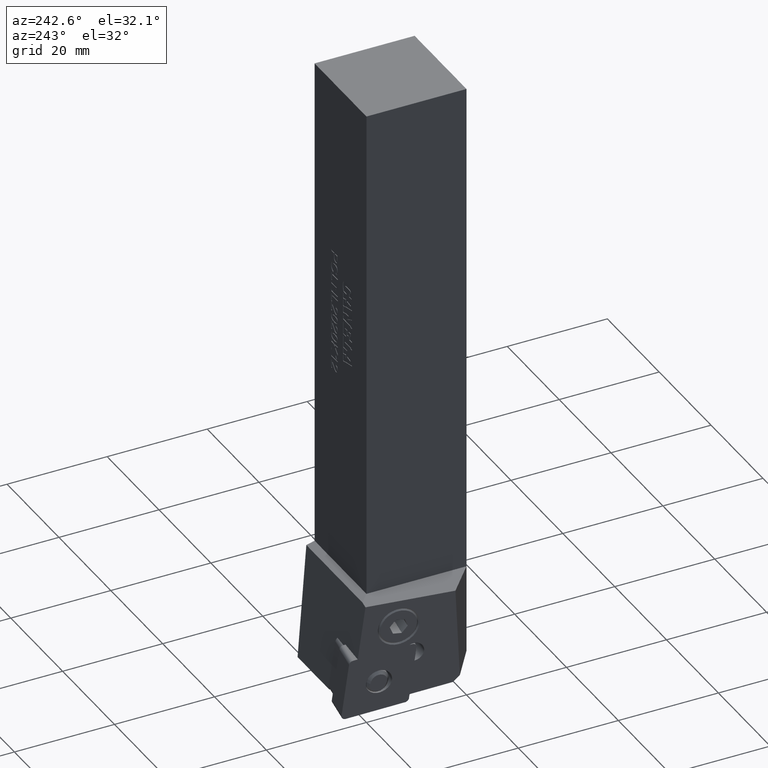
[diagram: clean part render]
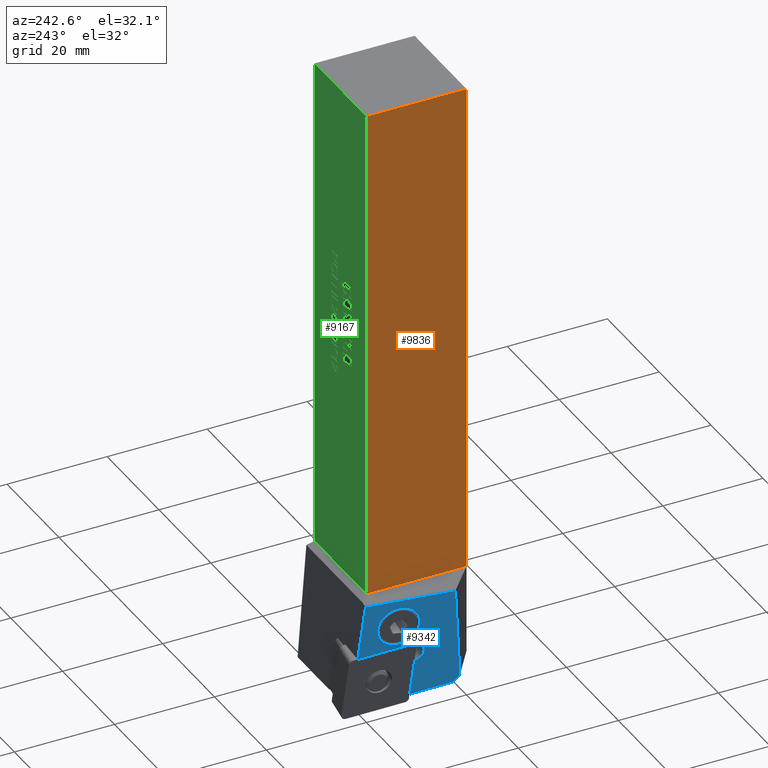
[diagram: same view with three faces highlighted in distinct colors, each labeled with its STEP entity id]
A machine part, auxiliary view with three faces highlighted in distinct colors.
Their STEP definitions:

[orange] entity #9836 — the highlighted planar face has unit normal (1, 0, 0).
#8878=CARTESIAN_POINT('',(-5.812126E-015,20.0,-100.0));
#8879=VERTEX_POINT('',#8878);
#8888=CARTESIAN_POINT('',(-5.812126E-015,20.0,0.0));
#8889=VERTEX_POINT('',#8888);
#8890=CARTESIAN_POINT('',(-5.812126E-015,20.0,0.0));
#8891=DIRECTION('',(0.0,0.0,-1.0));
#8892=VECTOR('',#8891,100.0);
#8893=LINE('',#8890,#8892);
#8894=EDGE_CURVE('',#8889,#8879,#8893,.T.);
#9348=CARTESIAN_POINT('',(0.0,0.0,-100.0));
#9349=VERTEX_POINT('',#9348);
#9380=CARTESIAN_POINT('',(1.509549E-016,0.0,-100.00000000000001));
#9381=DIRECTION('',(0.0,1.0,0.0));
#9382=VECTOR('',#9381,20.0);
#9383=LINE('',#9380,#9382);
#9384=EDGE_CURVE('',#9349,#8879,#9383,.T.);
#9451=CARTESIAN_POINT('',(0.0,0.0,0.0));
#9452=VERTEX_POINT('',#9451);
#9459=CARTESIAN_POINT('',(0.0,0.0,0.0));
#9460=DIRECTION('',(0.0,0.0,-1.0));
#9461=VECTOR('',#9460,100.0);
#9462=LINE('',#9459,#9461);
#9463=EDGE_CURVE('',#9452,#9349,#9462,.T.);
#9820=CARTESIAN_POINT('',(0.0,0.0,0.0));
#9821=DIRECTION('',(1.0,0.0,0.0));
#9822=DIRECTION('',(0.0,0.0,-1.0));
#9823=AXIS2_PLACEMENT_3D('',#9820,#9821,#9822);
#9824=PLANE('',#9823);
#9825=ORIENTED_EDGE('',*,*,#9384,.F.);
#9826=ORIENTED_EDGE('',*,*,#9463,.F.);
#9827=CARTESIAN_POINT('',(-5.812126E-015,20.0,0.0));
#9828=DIRECTION('',(0.0,-1.0,0.0));
#9829=VECTOR('',#9828,20.0);
#9830=LINE('',#9827,#9829);
#9831=EDGE_CURVE('',#8889,#9452,#9830,.T.);
#9832=ORIENTED_EDGE('',*,*,#9831,.F.);
#9833=ORIENTED_EDGE('',*,*,#8894,.T.);
#9834=EDGE_LOOP('',(#9825,#9826,#9832,#9833));
#9835=FACE_OUTER_BOUND('',#9834,.T.);
#9836=ADVANCED_FACE('',(#9835),#9824,.F.);

[blue] entity #9342 — the highlighted planar face has unit normal (-0.9891, 0.104, -0.1045).
#9235=CARTESIAN_POINT('',(-2.53995915780887,14.659104857616805,-110.60114077990086));
#9236=VERTEX_POINT('',#9235);
#9237=CARTESIAN_POINT('',(-2.91738035062956,15.052667880649008,-106.63848240576468));
#9238=DIRECTION('',(0.989073800366903,-0.10395584540888,0.104528463267654));
#9239=DIRECTION('',(-0.094355298205172,0.09839075575805,0.990664593534044));
#9240=AXIS2_PLACEMENT_3D('',#9237,#9238,#9239);
#9241=CIRCLE('',#9240,4.000000000000013);
#9242=EDGE_CURVE('',#9236,#9236,#9241,.T.);
#9267=CARTESIAN_POINT('',(-3.104855345702877,14.851000831010332,-105.06511059799678));
#9268=DIRECTION('',(-0.989073800366903,0.10395584540888,-0.104528463267654));
#9269=DIRECTION('',(-0.105097892765719,0.0,0.994461881087559));
#9270=AXIS2_PLACEMENT_3D('',#9267,#9268,#9269);
#9271=PLANE('',#9270);
#9272=CARTESIAN_POINT('',(-4.588807711568594,4.588807711568594,-101.2295673205365));
#9273=VERTEX_POINT('',#9272);
#9274=CARTESIAN_POINT('',(-2.751130381453557,2.751130381453557,-120.4457285305463));
#9275=VERTEX_POINT('',#9274);
#9276=CARTESIAN_POINT('',(-4.588807711568596,4.588807711568596,-101.22956732053652));
#9277=DIRECTION('',(0.09476908586501,-0.09476908586501,-0.990978123234121));
#9278=VECTOR('',#9277,19.391105373039551);
#9279=LINE('',#9276,#9278);
#9280=EDGE_CURVE('',#9273,#9275,#9279,.T.);
#9281=ORIENTED_EDGE('',*,*,#9280,.F.);
#9282=CARTESIAN_POINT('',(-2.842828071820155,21.671105127808747,-100.76173348606473));
#9283=VERTEX_POINT('',#9282);
#9284=CARTESIAN_POINT('',(-4.588807711568594,4.588807711568595,-101.22956732053652));
#9285=DIRECTION('',(0.101642427537944,0.994448124012469,0.027235006375531));
#9286=VECTOR('',#9285,17.177665685883447);
#9287=LINE('',#9284,#9286);
#9288=EDGE_CURVE('',#9273,#9283,#9287,.T.);
#9289=ORIENTED_EDGE('',*,*,#9288,.T.);
#9290=CARTESIAN_POINT('',(-1.54617750576824,22.543364437225506,-112.16347624521114));
#9291=VERTEX_POINT('',#9290);
#9292=CARTESIAN_POINT('',(-1.546177505768239,22.543364437225506,-112.16347624521116));
#9293=DIRECTION('',(-0.112670517886335,-0.075793672324845,0.990737439302028));
#9294=VECTOR('',#9293,11.508339451852091);
#9295=LINE('',#9292,#9294);
#9296=EDGE_CURVE('',#9291,#9283,#9295,.T.);
#9297=ORIENTED_EDGE('',*,*,#9296,.F.);
#9298=CARTESIAN_POINT('',(-2.664482775888137,12.764482092175305,-111.3071117741776));
#9299=VERTEX_POINT('',#9298);
#9300=CARTESIAN_POINT('',(-2.664482775888135,12.764482092175317,-111.30711177417761));
#9301=DIRECTION('',(0.113191049826486,0.989785158257596,-0.086678294469631));
#9302=VECTOR('',#9301,9.879802968822846);
#9303=LINE('',#9300,#9302);
#9304=EDGE_CURVE('',#9299,#9291,#9303,.T.);
#9305=ORIENTED_EDGE('',*,*,#9304,.F.);
#9306=CARTESIAN_POINT('',(-2.386570765654807,11.621764496774967,-115.07324063053046));
#9307=VERTEX_POINT('',#9306);
#9308=CARTESIAN_POINT('',(-2.568147158134795,11.879989353569655,-113.09831026795376));
#9309=DIRECTION('',(-0.989073800366903,0.10395584540888,-0.104528463267654));
#9310=DIRECTION('',(-0.094355298205172,0.09839075575805,0.990664593534044));
#9311=AXIS2_PLACEMENT_3D('',#9308,#9309,#9310);
#9312=CIRCLE('',#9311,2.0);
#9313=EDGE_CURVE('',#9307,#9299,#9312,.T.);
#9314=ORIENTED_EDGE('',*,*,#9313,.F.);
#9315=CARTESIAN_POINT('',(-1.552067345341289,12.183136539610635,-122.41121863258657));
#9316=VERTEX_POINT('',#9315);
#9317=CARTESIAN_POINT('',(-1.552067345341289,12.183136539610636,-122.41121863258657));
#9318=DIRECTION('',(-0.112670517886335,-0.075793672324845,0.990737439302028));
#9319=VECTOR('',#9318,7.406581916623332);
#9320=LINE('',#9317,#9319);
#9321=EDGE_CURVE('',#9316,#9307,#9320,.T.);
#9322=ORIENTED_EDGE('',*,*,#9321,.F.);
#9323=CARTESIAN_POINT('',(-2.487884384083899,4.0,-121.69459814909274));
#9324=VERTEX_POINT('',#9323);
#9325=CARTESIAN_POINT('',(-2.4878843840839,4.000000000000012,-121.69459814909273));
#9326=DIRECTION('',(0.113191049826486,0.989785158257595,-0.086678294469633));
#9327=VECTOR('',#9326,8.267588649254053);
#9328=LINE('',#9325,#9327);
#9329=EDGE_CURVE('',#9324,#9316,#9328,.T.);
#9330=ORIENTED_EDGE('',*,*,#9329,.F.);
#9331=CARTESIAN_POINT('',(-2.751130381453557,2.751130381453558,-120.44572853054629));
#9332=DIRECTION('',(0.147420680520654,0.699380848663599,-0.699380848663596));
#9333=VECTOR('',#9332,1.785678891454956);
#9334=LINE('',#9331,#9333);
#9335=EDGE_CURVE('',#9275,#9324,#9334,.T.);
#9336=ORIENTED_EDGE('',*,*,#9335,.F.);
#9337=EDGE_LOOP('',(#9281,#9289,#9297,#9305,#9314,#9322,#9330,#9336));
#9338=FACE_OUTER_BOUND('',#9337,.T.);
#9339=ORIENTED_EDGE('',*,*,#9242,.T.);
#9340=EDGE_LOOP('',(#9339));
#9341=FACE_BOUND('',#9340,.T.);
#9342=ADVANCED_FACE('',(#9338,#9341),#9271,.T.);

[green] entity #9167 — the highlighted planar face has unit normal (0, -1, 0).
#264=CARTESIAN_POINT('',(11.773008773851803,20.0,-58.460365853658551));
#265=VERTEX_POINT('',#264);
#266=CARTESIAN_POINT('',(11.050828895803022,20.0,-59.272103658536601));
#267=VERTEX_POINT('',#266);
#268=CARTESIAN_POINT('',(11.773008773851803,20.0,-58.460365853658551));
#269=CARTESIAN_POINT('',(11.420493529949365,20.0,-58.492759146341484));
#270=CARTESIAN_POINT('',(11.050828895803022,20.0,-58.915777439024396));
#271=CARTESIAN_POINT('',(11.050828895803022,20.0,-59.272103658536601));
#272=QUASI_UNIFORM_CURVE('',2,(#268,#269,#270,#271),.UNSPECIFIED.,.F.,.U.);
#273=EDGE_CURVE('',#265,#267,#272,.T.);
#300=CARTESIAN_POINT('',(11.744426456778633,20.0,-60.051448170731724));
#301=VERTEX_POINT('',#300);
#302=CARTESIAN_POINT('',(11.050828895803022,20.0,-59.272103658536601));
#303=CARTESIAN_POINT('',(11.050828895803022,20.0,-59.632240853658551));
#304=CARTESIAN_POINT('',(11.449075847022536,20.0,-60.051448170731724));
#305=CARTESIAN_POINT('',(11.744426456778632,20.0,-60.051448170731724));
#306=QUASI_UNIFORM_CURVE('',2,(#302,#303,#304,#305),.UNSPECIFIED.,.F.,.U.);
#307=EDGE_CURVE('',#267,#301,#306,.T.);
#331=CARTESIAN_POINT('',(12.784822798242047,20.0,-59.314024390243922));
#332=VERTEX_POINT('',#331);
#333=CARTESIAN_POINT('',(11.744426456778632,20.0,-60.051448170731724));
#334=CARTESIAN_POINT('',(11.894959993363997,20.0,-60.051448170731724));
#335=CARTESIAN_POINT('',(12.18459413970546,20.0,-59.929496951219519));
#336=CARTESIAN_POINT('',(12.504716090924974,20.0,-59.643673780487831));
#337=CARTESIAN_POINT('',(12.784822798242047,20.0,-59.314024390243922));
#338=QUASI_UNIFORM_CURVE('',2,(#333,#334,#335,#336,#337),.UNSPECIFIED.,.F.,.U.);
#339=EDGE_CURVE('',#301,#332,#338,.T.);
#361=CARTESIAN_POINT('',(13.265005725071317,20.0,-58.830030487804891));
#362=VERTEX_POINT('',#361);
#363=CARTESIAN_POINT('',(12.784822798242047,20.0,-59.314024390243922));
#364=CARTESIAN_POINT('',(13.015386822632289,20.0,-59.037728658536601));
#365=CARTESIAN_POINT('',(13.181164261656679,20.0,-58.881478658536601));
#366=CARTESIAN_POINT('',(13.265005725071317,20.0,-58.830030487804891));
#367=QUASI_UNIFORM_CURVE('',2,(#363,#364,#365,#366),.UNSPECIFIED.,.F.,.U.);
#368=EDGE_CURVE('',#332,#362,#367,.T.);
#386=CARTESIAN_POINT('',(13.265005725071317,20.0,-60.055259146341484));
#387=VERTEX_POINT('',#386);
#388=CARTESIAN_POINT('',(13.265005725071317,20.0,-58.830030487804891));
#389=DIRECTION('',(0.0,0.0,-1.0));
#390=VECTOR('',#389,1.225228658536594);
#391=LINE('',#388,#390);
#392=EDGE_CURVE('',#362,#387,#391,.T.);
#410=CARTESIAN_POINT('',(13.560356334827413,20.0,-60.055259146341484));
#411=VERTEX_POINT('',#410);
#412=CARTESIAN_POINT('',(13.265005725071317,20.0,-60.055259146341484));
#413=DIRECTION('',(1.0,0.0,0.0));
#414=VECTOR('',#413,0.295350609756095);
#415=LINE('',#412,#414);
#416=EDGE_CURVE('',#387,#411,#415,.T.);
#434=CARTESIAN_POINT('',(13.560356334827413,20.0,-58.403201219512212));
#435=VERTEX_POINT('',#434);
#436=CARTESIAN_POINT('',(13.560356334827413,20.0,-60.055259146341484));
#437=DIRECTION('',(0.0,0.0,1.0));
#438=VECTOR('',#437,1.652057926829272);
#439=LINE('',#436,#438);
#440=EDGE_CURVE('',#411,#435,#439,.T.);
#460=CARTESIAN_POINT('',(13.34694170068107,20.0,-58.439405487804891));
#461=VERTEX_POINT('',#460);
#462=CARTESIAN_POINT('',(13.560356334827413,20.0,-58.403201219512212));
#463=CARTESIAN_POINT('',(13.449838042144485,20.0,-58.399390243902459));
#464=CARTESIAN_POINT('',(13.34694170068107,20.0,-58.439405487804891));
#465=QUASI_UNIFORM_CURVE('',2,(#462,#463,#464),.UNSPECIFIED.,.F.,.U.);
#466=EDGE_CURVE('',#435,#461,#465,.T.);
#488=CARTESIAN_POINT('',(12.636194749461559,20.0,-59.043445121951237));
#489=VERTEX_POINT('',#488);
#490=CARTESIAN_POINT('',(13.34694170068107,20.0,-58.439405487804891));
#491=CARTESIAN_POINT('',(13.177353286046927,20.0,-58.502286585365866));
#492=CARTESIAN_POINT('',(12.851514871412778,20.0,-58.780487804878064));
#493=CARTESIAN_POINT('',(12.636194749461559,20.0,-59.043445121951237));
#494=QUASI_UNIFORM_CURVE('',2,(#490,#491,#492,#493),.UNSPECIFIED.,.F.,.U.);
#495=EDGE_CURVE('',#461,#489,#494,.T.);
#517=CARTESIAN_POINT('',(11.736804505559117,20.0,-59.735137195121965));
#518=VERTEX_POINT('',#517);
#519=CARTESIAN_POINT('',(12.636194749461559,20.0,-59.043445121951237));
#520=CARTESIAN_POINT('',(12.300828895803022,20.0,-59.449314024390262));
#521=CARTESIAN_POINT('',(11.912109383607898,20.0,-59.735137195121965));
#522=CARTESIAN_POINT('',(11.736804505559117,20.0,-59.735137195121965));
#523=QUASI_UNIFORM_CURVE('',2,(#519,#520,#521,#522),.UNSPECIFIED.,.F.,.U.);
#524=EDGE_CURVE('',#489,#518,#523,.T.);
#546=CARTESIAN_POINT('',(11.304258773851803,20.0,-59.264481707317088));
#547=VERTEX_POINT('',#546);
#548=CARTESIAN_POINT('',(11.736804505559117,20.0,-59.735137195121965));
#549=CARTESIAN_POINT('',(11.553877676290828,20.0,-59.735137195121965));
#550=CARTESIAN_POINT('',(11.304258773851803,20.0,-59.474085365853675));
#551=CARTESIAN_POINT('',(11.304258773851803,20.0,-59.264481707317088));
#552=QUASI_UNIFORM_CURVE('',2,(#548,#549,#550,#551),.UNSPECIFIED.,.F.,.U.);
#553=EDGE_CURVE('',#518,#547,#552,.T.);
#575=CARTESIAN_POINT('',(11.805402066534729,20.0,-58.776676829268304));
#576=VERTEX_POINT('',#575);
#577=CARTESIAN_POINT('',(11.304258773851803,20.0,-59.264481707317088));
#578=CARTESIAN_POINT('',(11.304258773851803,20.0,-59.043445121951237));
#579=CARTESIAN_POINT('',(11.571027066534732,20.0,-58.77858231707318));
#580=CARTESIAN_POINT('',(11.805402066534732,20.0,-58.776676829268304));
#581=QUASI_UNIFORM_CURVE('',2,(#577,#578,#579,#580),.UNSPECIFIED.,.F.,.U.);
#582=EDGE_CURVE('',#547,#576,#581,.T.);
#600=CARTESIAN_POINT('',(11.805402066534729,20.0,-58.776676829268297));
#601=DIRECTION('',(-0.10187680355652,0.0,0.994797022963532));
#602=VECTOR('',#601,0.317965341982466);
#603=LINE('',#600,#602);
#604=EDGE_CURVE('',#576,#265,#603,.T.);
#621=CARTESIAN_POINT('',(8.411203731402374,20.0,-40.424814515520509));
#622=VERTEX_POINT('',#621);
#623=CARTESIAN_POINT('',(7.896248202581067,20.0,-40.789810467267486));
#624=VERTEX_POINT('',#623);
#625=CARTESIAN_POINT('',(8.411203731402374,20.0,-40.424814515520509));
#626=CARTESIAN_POINT('',(8.411203731402374,20.0,-40.617215482332867));
#627=CARTESIAN_POINT('',(8.173531948869467,20.0,-40.789810467267486));
#628=CARTESIAN_POINT('',(7.896248202581067,20.0,-40.789810467267486));
#629=QUASI_UNIFORM_CURVE('',2,(#625,#626,#627,#628),.UNSPECIFIED.,.F.,.U.);
#630=EDGE_CURVE('',#622,#624,#629,.T.);
#670=CARTESIAN_POINT('',(7.896248202581067,20.0,-40.054159711808467));
#671=VERTEX_POINT('',#670);
#672=CARTESIAN_POINT('',(7.896248202581067,20.0,-40.054159711808467));
#673=CARTESIAN_POINT('',(8.170702522886932,20.0,-40.054159711808467));
#674=CARTESIAN_POINT('',(8.411203731402374,20.0,-40.229584122725619));
#675=CARTESIAN_POINT('',(8.411203731402374,20.0,-40.424814515520509));
#676=QUASI_UNIFORM_CURVE('',2,(#672,#673,#674,#675),.UNSPECIFIED.,.F.,.U.);
#677=EDGE_CURVE('',#671,#622,#676,.T.);
#706=CARTESIAN_POINT('',(6.696571585986382,20.0,-40.054159711808467));
#707=VERTEX_POINT('',#706);
#708=CARTESIAN_POINT('',(6.696571585986382,20.0,-40.054159711808467));
#709=DIRECTION('',(1.0,0.0,0.0));
#710=VECTOR('',#709,1.199676616594685);
#711=LINE('',#708,#710);
#712=EDGE_CURVE('',#707,#671,#711,.T.);
#741=CARTESIAN_POINT('',(6.184445483147609,20.0,-40.424814515520509));
#742=VERTEX_POINT('',#741);
#743=CARTESIAN_POINT('',(6.184445483147609,20.0,-40.424814515520509));
#744=CARTESIAN_POINT('',(6.184445483147609,20.0,-40.229584122725619));
#745=CARTESIAN_POINT('',(6.424946691663056,20.0,-40.054159711808467));
#746=CARTESIAN_POINT('',(6.696571585986382,20.0,-40.054159711808467));
#747=QUASI_UNIFORM_CURVE('',2,(#743,#744,#745,#746),.UNSPECIFIED.,.F.,.U.);
#748=EDGE_CURVE('',#742,#707,#747,.T.);
#781=CARTESIAN_POINT('',(6.656959622230891,20.0,-40.789810467267486));
#782=VERTEX_POINT('',#781);
#783=CARTESIAN_POINT('',(6.656959622230891,20.0,-40.789810467267486));
#784=CARTESIAN_POINT('',(6.416458413715445,20.0,-40.789810467267486));
#785=CARTESIAN_POINT('',(6.184445483147609,20.0,-40.608727204385261));
#786=CARTESIAN_POINT('',(6.184445483147609,20.0,-40.424814515520509));
#787=QUASI_UNIFORM_CURVE('',2,(#783,#784,#785,#786),.UNSPECIFIED.,.F.,.U.);
#788=EDGE_CURVE('',#782,#742,#787,.T.);
#817=CARTESIAN_POINT('',(6.724865845811721,20.0,-40.789810467267486));
#818=VERTEX_POINT('',#817);
#819=CARTESIAN_POINT('',(6.724865845811721,20.0,-40.789810467267486));
#820=DIRECTION('',(-1.0,0.0,0.0));
#821=VECTOR('',#820,0.067906223580829);
#822=LINE('',#819,#821);
#823=EDGE_CURVE('',#818,#782,#822,.T.);
#848=CARTESIAN_POINT('',(6.724865845811721,20.0,-41.553755482551836));
#849=VERTEX_POINT('',#848);
#850=CARTESIAN_POINT('',(6.724865845811721,20.0,-41.553755482551836));
#851=DIRECTION('',(0.0,0.0,1.0));
#852=VECTOR('',#851,0.763945015284349);
#853=LINE('',#850,#852);
#854=EDGE_CURVE('',#849,#818,#853,.T.);
#879=CARTESIAN_POINT('',(5.734566751924594,20.0,-41.553755482551836));
#880=VERTEX_POINT('',#879);
#881=CARTESIAN_POINT('',(5.734566751924593,20.0,-41.553755482551836));
#882=DIRECTION('',(1.0,0.0,0.0));
#883=VECTOR('',#882,0.990299093887128);
#884=LINE('',#881,#883);
#885=EDGE_CURVE('',#880,#849,#884,.T.);
#914=CARTESIAN_POINT('',(5.477088987513943,20.0,-40.424814515520509));
#915=VERTEX_POINT('',#914);
#916=CARTESIAN_POINT('',(5.477088987513943,20.0,-40.424814515520509));
#917=CARTESIAN_POINT('',(5.477088987513943,20.0,-40.713415965739046));
#918=CARTESIAN_POINT('',(5.607242582710539,20.0,-41.279301162245972));
#919=CARTESIAN_POINT('',(5.734566751924595,20.0,-41.553755482551836));
#920=QUASI_UNIFORM_CURVE('',2,(#916,#917,#918,#919),.UNSPECIFIED.,.F.,.U.);
#921=EDGE_CURVE('',#915,#880,#920,.T.);
#954=CARTESIAN_POINT('',(5.890185180964007,20.0,-39.38358575394777));
#955=VERTEX_POINT('',#954);
#956=CARTESIAN_POINT('',(5.890185180964007,20.0,-39.383585753947763));
#957=CARTESIAN_POINT('',(5.677978232273908,20.0,-39.510909923161826));
#958=CARTESIAN_POINT('',(5.477088987513943,20.0,-40.014547748052991));
#959=CARTESIAN_POINT('',(5.477088987513943,20.0,-40.424814515520509));
#960=QUASI_UNIFORM_CURVE('',2,(#956,#957,#958,#959),.UNSPECIFIED.,.F.,.U.);
#961=EDGE_CURVE('',#955,#915,#960,.T.);
#994=CARTESIAN_POINT('',(6.724865845811721,20.0,-39.247773306786101));
#995=VERTEX_POINT('',#994);
#996=CARTESIAN_POINT('',(6.724865845811721,20.0,-39.247773306786101));
#997=CARTESIAN_POINT('',(6.345722764152084,20.0,-39.247773306786101));
#998=CARTESIAN_POINT('',(6.014679924195532,20.0,-39.310020678401862));
#999=CARTESIAN_POINT('',(5.890185180964007,20.0,-39.383585753947763));
#1000=QUASI_UNIFORM_CURVE('',2,(#996,#997,#998,#999),.UNSPECIFIED.,.F.,.U.);
#1001=EDGE_CURVE('',#995,#955,#1000,.T.);
#1030=CARTESIAN_POINT('',(7.867953942755719,20.0,-39.247773306786101));
#1031=VERTEX_POINT('',#1030);
#1032=CARTESIAN_POINT('',(7.867953942755719,20.0,-39.247773306786101));
#1033=DIRECTION('',(-1.0,0.0,0.0));
#1034=VECTOR('',#1033,1.143088096943998);
#1035=LINE('',#1032,#1034);
#1036=EDGE_CURVE('',#1031,#995,#1035,.T.);
#1065=CARTESIAN_POINT('',(8.779029109131876,20.0,-39.434515421633392));
#1066=VERTEX_POINT('',#1065);
#1067=CARTESIAN_POINT('',(8.779029109131876,20.0,-39.434515421633385));
#1068=CARTESIAN_POINT('',(8.64887551393528,20.0,-39.332656086262141));
#1069=CARTESIAN_POINT('',(8.283879562188314,20.0,-39.247773306786101));
#1070=CARTESIAN_POINT('',(7.867953942755719,20.0,-39.247773306786101));
#1071=QUASI_UNIFORM_CURVE('',2,(#1067,#1068,#1069,#1070),.UNSPECIFIED.,.F.,.U.);
#1072=EDGE_CURVE('',#1066,#1031,#1071,.T.);
#1105=CARTESIAN_POINT('',(9.118560227036037,20.0,-40.424814515520509));
#1106=VERTEX_POINT('',#1105);
#1107=CARTESIAN_POINT('',(9.118560227036037,20.0,-40.424814515520509));
#1108=CARTESIAN_POINT('',(9.118560227036037,20.0,-40.051330285825941));
#1109=CARTESIAN_POINT('',(8.95162409406649,20.0,-39.573157294777587));
#1110=CARTESIAN_POINT('',(8.779029109131876,20.0,-39.434515421633385));
#1111=QUASI_UNIFORM_CURVE('',2,(#1107,#1108,#1109,#1110),.UNSPECIFIED.,.F.,.U.);
#1112=EDGE_CURVE('',#1106,#1066,#1111,.T.);
#1145=CARTESIAN_POINT('',(8.849764758695248,20.0,-41.553755482551836));
#1146=VERTEX_POINT('',#1145);
#1147=CARTESIAN_POINT('',(8.849764758695248,20.0,-41.553755482551836));
#1148=CARTESIAN_POINT('',(8.979918353891838,20.0,-41.301936570106257));
#1149=CARTESIAN_POINT('',(9.118560227036037,20.0,-40.719074817704112));
#1150=CARTESIAN_POINT('',(9.118560227036037,20.0,-40.424814515520509));
#1151=QUASI_UNIFORM_CURVE('',2,(#1147,#1148,#1149,#1150),.UNSPECIFIED.,.F.,.U.);
#1152=EDGE_CURVE('',#1146,#1106,#1151,.T.);
#1181=CARTESIAN_POINT('',(7.647258716118017,20.0,-41.553755482551836));
#1182=VERTEX_POINT('',#1181);
#1183=CARTESIAN_POINT('',(7.647258716118017,20.0,-41.553755482551836));
#1184=DIRECTION('',(1.0,0.0,0.0));
#1185=VECTOR('',#1184,1.20250604257723);
#1186=LINE('',#1183,#1185);
#1187=EDGE_CURVE('',#1182,#1146,#1186,.T.);
#1212=CARTESIAN_POINT('',(7.647258716118017,20.0,-40.789810467267486));
#1213=VERTEX_POINT('',#1212);
#1214=CARTESIAN_POINT('',(7.647258716118017,20.0,-40.789810467267486));
#1215=DIRECTION('',(0.0,0.0,-1.0));
#1216=VECTOR('',#1215,0.763945015284349);
#1217=LINE('',#1214,#1216);
#1218=EDGE_CURVE('',#1213,#1182,#1217,.T.);
#1243=CARTESIAN_POINT('',(7.896248202581067,20.0,-40.789810467267486));
#1244=DIRECTION('',(-1.0,0.0,0.0));
#1245=VECTOR('',#1244,0.248989486463049);
#1246=LINE('',#1243,#1245);
#1247=EDGE_CURVE('',#624,#1213,#1246,.T.);
#1491=CARTESIAN_POINT('',(6.948390498431971,20.0,-49.993933188452679));
#1492=VERTEX_POINT('',#1491);
#1493=CARTESIAN_POINT('',(7.536911102799175,20.0,-49.993933188452679));
#1494=VERTEX_POINT('',#1493);
#1495=CARTESIAN_POINT('',(6.948390498431971,20.0,-49.993933188452679));
#1496=DIRECTION('',(1.0,0.0,0.0));
#1497=VECTOR('',#1496,0.588520604367204);
#1498=LINE('',#1495,#1497);
#1499=EDGE_CURVE('',#1492,#1494,#1498,.T.);
#1522=CARTESIAN_POINT('',(7.536911102799166,20.0,-49.037587206355973));
#1523=VERTEX_POINT('',#1522);
#1524=CARTESIAN_POINT('',(7.536911102799175,20.0,-49.993933188452679));
#1525=DIRECTION('',(0.0,0.0,1.0));
#1526=VECTOR('',#1525,0.956345982096707);
#1527=LINE('',#1524,#1526);
#1528=EDGE_CURVE('',#1494,#1523,#1527,.T.);
#1546=CARTESIAN_POINT('',(8.37725061961196,20.0,-49.037587206355973));
#1547=VERTEX_POINT('',#1546);
#1548=CARTESIAN_POINT('',(7.536911102799166,20.0,-49.037587206355973));
#1549=DIRECTION('',(1.0,0.0,0.0));
#1550=VECTOR('',#1549,0.840339516812794);
#1551=LINE('',#1548,#1550);
#1552=EDGE_CURVE('',#1523,#1547,#1551,.T.);
#1570=CARTESIAN_POINT('',(8.37725061961196,20.0,-49.391265454172803));
#1571=VERTEX_POINT('',#1570);
#1572=CARTESIAN_POINT('',(8.37725061961196,20.0,-49.037587206355973));
#1573=DIRECTION('',(0.0,0.0,-1.0));
#1574=VECTOR('',#1573,0.353678247816823);
#1575=LINE('',#1572,#1574);
#1576=EDGE_CURVE('',#1547,#1571,#1575,.T.);
#1598=CARTESIAN_POINT('',(8.000936963934848,20.0,-49.756261405919773));
#1599=VERTEX_POINT('',#1598);
#1600=CARTESIAN_POINT('',(8.37725061961196,20.000000000000018,-49.391265454172803));
#1601=CARTESIAN_POINT('',(8.37725061961196,20.000000000000018,-49.597813550897826));
#1602=CARTESIAN_POINT('',(8.21880276459002,20.000000000000018,-49.756261405919773));
#1603=CARTESIAN_POINT('',(8.000936963934846,20.000000000000018,-49.756261405919773));
#1604=QUASI_UNIFORM_CURVE('',2,(#1600,#1601,#1602,#1603),.UNSPECIFIED.,.F.,.U.);
#1605=EDGE_CURVE('',#1571,#1599,#1604,.T.);
#1623=CARTESIAN_POINT('',(7.87361279472079,20.0,-49.756261405919773));
#1624=VERTEX_POINT('',#1623);
#1625=CARTESIAN_POINT('',(8.000936963934848,20.0,-49.756261405919773));
#1626=DIRECTION('',(-1.0,0.0,0.0));
#1627=VECTOR('',#1626,0.127324169214058);
#1628=LINE('',#1625,#1627);
#1629=EDGE_CURVE('',#1599,#1624,#1628,.T.);
#1647=CARTESIAN_POINT('',(7.873612794720799,20.0,-50.514547569239056));
#1648=VERTEX_POINT('',#1647);
#1649=CARTESIAN_POINT('',(7.87361279472079,20.0,-49.756261405919773));
#1650=DIRECTION('',(0.0,0.0,-1.0));
#1651=VECTOR('',#1650,0.758286163319283);
#1652=LINE('',#1649,#1651);
#1653=EDGE_CURVE('',#1624,#1648,#1652,.T.);
#1671=CARTESIAN_POINT('',(9.047824577472671,20.0,-50.514547569239056));
#1672=VERTEX_POINT('',#1671);
#1673=CARTESIAN_POINT('',(7.873612794720799,20.0,-50.514547569239056));
#1674=DIRECTION('',(1.0,0.0,0.0));
#1675=VECTOR('',#1674,1.174211782751872);
#1676=LINE('',#1673,#1675);
#1677=EDGE_CURVE('',#1648,#1672,#1676,.T.);
#1695=CARTESIAN_POINT('',(9.047824577472671,20.0,-48.050117538451374));
#1696=VERTEX_POINT('',#1695);
#1697=CARTESIAN_POINT('',(9.047824577472671,20.0,-50.514547569239056));
#1698=DIRECTION('',(0.0,0.0,1.0));
#1699=VECTOR('',#1698,2.464430030787682);
#1700=LINE('',#1697,#1699);
#1701=EDGE_CURVE('',#1672,#1696,#1700,.T.);
#1719=CARTESIAN_POINT('',(8.459303973105467,20.0,-48.050117538451374));
#1720=VERTEX_POINT('',#1719);
#1721=CARTESIAN_POINT('',(9.047824577472671,20.0,-48.050117538451374));
#1722=DIRECTION('',(-1.0,0.0,0.0));
#1723=VECTOR('',#1722,0.588520604367204);
#1724=LINE('',#1721,#1723);
#1725=EDGE_CURVE('',#1696,#1720,#1724,.T.);
#1747=CARTESIAN_POINT('',(8.094308021358497,20.0,-48.228371375351067));
#1748=VERTEX_POINT('',#1747);
#1749=CARTESIAN_POINT('',(8.459303973105467,20.0,-48.050117538451374));
#1750=CARTESIAN_POINT('',(8.436668565245187,20.0,-48.151976873822626));
#1751=CARTESIAN_POINT('',(8.309344396031131,20.0,-48.228371375351067));
#1752=CARTESIAN_POINT('',(8.094308021358497,20.0,-48.228371375351067));
#1753=QUASI_UNIFORM_CURVE('',2,(#1749,#1750,#1751,#1752),.UNSPECIFIED.,.F.,.U.);
#1754=EDGE_CURVE('',#1720,#1748,#1753,.T.);
#1772=CARTESIAN_POINT('',(6.478705785331211,20.0,-48.228371375351067));
#1773=VERTEX_POINT('',#1772);
#1774=CARTESIAN_POINT('',(8.094308021358497,20.0,-48.228371375351067));
#1775=DIRECTION('',(-1.0,0.0,0.0));
#1776=VECTOR('',#1775,1.615602236027286);
#1777=LINE('',#1774,#1776);
#1778=EDGE_CURVE('',#1748,#1773,#1777,.T.);
#1800=CARTESIAN_POINT('',(6.11370983358424,20.0,-48.050117538451374));
#1801=VERTEX_POINT('',#1800);
#1802=CARTESIAN_POINT('',(6.478705785331211,20.0,-48.228371375351067));
#1803=CARTESIAN_POINT('',(6.263669410658581,20.0,-48.228371375351067));
#1804=CARTESIAN_POINT('',(6.136345241444516,20.0,-48.151976873822626));
#1805=CARTESIAN_POINT('',(6.11370983358424,20.0,-48.050117538451374));
#1806=QUASI_UNIFORM_CURVE('',2,(#1802,#1803,#1804,#1805),.UNSPECIFIED.,.F.,.U.);
#1807=EDGE_CURVE('',#1773,#1801,#1806,.T.);
#1825=CARTESIAN_POINT('',(5.547824637077312,20.0,-48.050117538451374));
#1826=VERTEX_POINT('',#1825);
#1827=CARTESIAN_POINT('',(6.11370983358424,20.0,-48.050117538451374));
#1828=DIRECTION('',(-1.0,0.0,0.0));
#1829=VECTOR('',#1828,0.565885196506928);
#1830=LINE('',#1827,#1829);
#1831=EDGE_CURVE('',#1801,#1826,#1830,.T.);
#1849=CARTESIAN_POINT('',(5.547824637077321,20.0,-50.514547569239056));
#1850=VERTEX_POINT('',#1849);
#1851=CARTESIAN_POINT('',(5.547824637077311,20.0,-48.050117538451374));
#1852=DIRECTION('',(0.0,0.0,-1.0));
#1853=VECTOR('',#1852,2.464430030787682);
#1854=LINE('',#1851,#1853);
#1855=EDGE_CURVE('',#1826,#1850,#1854,.T.);
#1873=CARTESIAN_POINT('',(6.617347658475419,20.0,-50.514547569239056));
#1874=VERTEX_POINT('',#1873);
#1875=CARTESIAN_POINT('',(5.547824637077321,20.0,-50.514547569239056));
#1876=DIRECTION('',(1.0,0.0,0.0));
#1877=VECTOR('',#1876,1.069523021398098);
#1878=LINE('',#1875,#1877);
#1879=EDGE_CURVE('',#1850,#1874,#1878,.T.);
#1897=CARTESIAN_POINT('',(6.61734765847541,20.0,-49.756261405919773));
#1898=VERTEX_POINT('',#1897);
#1899=CARTESIAN_POINT('',(6.61734765847542,20.0,-50.514547569239056));
#1900=DIRECTION('',(0.0,0.0,1.0));
#1901=VECTOR('',#1900,0.758286163319283);
#1902=LINE('',#1899,#1901);
#1903=EDGE_CURVE('',#1874,#1898,#1902,.T.);
#1921=CARTESIAN_POINT('',(6.58056512070246,20.0,-49.756261405919773));
#1922=VERTEX_POINT('',#1921);
#1923=CARTESIAN_POINT('',(6.61734765847541,20.0,-49.756261405919773));
#1924=DIRECTION('',(-1.0,0.0,0.0));
#1925=VECTOR('',#1924,0.03678253777295);
#1926=LINE('',#1923,#1925);
#1927=EDGE_CURVE('',#1898,#1922,#1926,.T.);
#1949=CARTESIAN_POINT('',(6.218398594938019,20.0,-49.337506360504648));
#1950=VERTEX_POINT('',#1949);
#1951=CARTESIAN_POINT('',(6.58056512070246,20.0,-49.756261405919773));
#1952=CARTESIAN_POINT('',(6.379675875942494,20.0,-49.756261405919773));
#1953=CARTESIAN_POINT('',(6.218398594938019,20.0,-49.572348717055021));
#1954=CARTESIAN_POINT('',(6.218398594938019,20.0,-49.337506360504648));
#1955=QUASI_UNIFORM_CURVE('',2,(#1951,#1952,#1953,#1954),.UNSPECIFIED.,.F.,.U.);
#1956=EDGE_CURVE('',#1922,#1950,#1955,.T.);
#1974=CARTESIAN_POINT('',(6.218398594938019,20.0,-49.037587206355973));
#1975=VERTEX_POINT('',#1974);
#1976=CARTESIAN_POINT('',(6.218398594938019,20.0,-49.337506360504648));
#1977=DIRECTION('',(0.0,0.0,1.0));
#1978=VECTOR('',#1977,0.299919154148675);
#1979=LINE('',#1976,#1978);
#1980=EDGE_CURVE('',#1950,#1975,#1979,.T.);
#1998=CARTESIAN_POINT('',(6.948390498431962,20.0,-49.037587206355973));
#1999=VERTEX_POINT('',#1998);
#2000=CARTESIAN_POINT('',(6.218398594938019,20.0,-49.037587206355973));
#2001=DIRECTION('',(1.0,0.0,0.0));
#2002=VECTOR('',#2001,0.729991903493943);
#2003=LINE('',#2000,#2002);
#2004=EDGE_CURVE('',#1975,#1999,#2003,.T.);
#2022=CARTESIAN_POINT('',(6.948390498431962,20.0,-49.037587206355973));
#2023=DIRECTION('',(0.0,0.0,-1.0));
#2024=VECTOR('',#2023,0.956345982096707);
#2025=LINE('',#2022,#2024);
#2026=EDGE_CURVE('',#1999,#1492,#2025,.T.);
#2043=CARTESIAN_POINT('',(8.29236784013592,20.0,-43.590942189976772));
#2044=VERTEX_POINT('',#2043);
#2045=CARTESIAN_POINT('',(8.190508504764672,20.0,-43.57962448604664));
#2046=VERTEX_POINT('',#2045);
#2047=CARTESIAN_POINT('',(8.29236784013592,20.0,-43.590942189976772));
#2048=CARTESIAN_POINT('',(8.275391284240712,20.0,-43.590942189976772));
#2049=CARTESIAN_POINT('',(8.221632190572557,20.0,-43.585283338011713));
#2050=CARTESIAN_POINT('',(8.190508504764672,20.0,-43.57962448604664));
#2051=QUASI_UNIFORM_CURVE('',2,(#2047,#2048,#2049,#2050),.UNSPECIFIED.,.F.,.U.);
#2052=EDGE_CURVE('',#2044,#2046,#2051,.T.);
#2092=CARTESIAN_POINT('',(8.459303973105467,20.0,-43.415517779059634));
#2093=VERTEX_POINT('',#2092);
#2094=CARTESIAN_POINT('',(8.459303973105467,20.0,-43.415517779059634));
#2095=CARTESIAN_POINT('',(8.453645121140397,20.0,-43.494741706570608));
#2096=CARTESIAN_POINT('',(8.365932915681821,20.0,-43.590942189976772));
#2097=CARTESIAN_POINT('',(8.29236784013592,20.0,-43.590942189976772));
#2098=QUASI_UNIFORM_CURVE('',2,(#2094,#2095,#2096,#2097),.UNSPECIFIED.,.F.,.U.);
#2099=EDGE_CURVE('',#2093,#2044,#2098,.T.);
#2128=CARTESIAN_POINT('',(9.047824577472671,20.0,-43.415517779059634));
#2129=VERTEX_POINT('',#2128);
#2130=CARTESIAN_POINT('',(9.047824577472671,20.0,-43.415517779059634));
#2131=DIRECTION('',(-1.0,0.0,0.0));
#2132=VECTOR('',#2131,0.588520604367204);
#2133=LINE('',#2130,#2132);
#2134=EDGE_CURVE('',#2129,#2093,#2133,.T.);
#2159=CARTESIAN_POINT('',(9.047824577472671,20.0,-44.606706117706722));
#2160=VERTEX_POINT('',#2159);
#2161=CARTESIAN_POINT('',(9.047824577472671,20.0,-44.606706117706722));
#2162=DIRECTION('',(0.0,0.0,1.0));
#2163=VECTOR('',#2162,1.191188338647081);
#2164=LINE('',#2161,#2163);
#2165=EDGE_CURVE('',#2160,#2129,#2164,.T.);
#2190=CARTESIAN_POINT('',(8.459303973105467,20.0,-44.606706117706707));
#2191=VERTEX_POINT('',#2190);
#2192=CARTESIAN_POINT('',(8.459303973105467,20.0,-44.606706117706707));
#2193=DIRECTION('',(1.0,0.0,0.0));
#2194=VECTOR('',#2193,0.588520604367204);
#2195=LINE('',#2192,#2194);
#2196=EDGE_CURVE('',#2191,#2160,#2195,.T.);
#2225=CARTESIAN_POINT('',(8.148067115026656,20.0,-44.402987446964218));
#2226=VERTEX_POINT('',#2225);
#2227=CARTESIAN_POINT('',(8.148067115026656,20.0,-44.402987446964218));
#2228=CARTESIAN_POINT('',(8.306514970048596,20.0,-44.439769984737168));
#2229=CARTESIAN_POINT('',(8.433839139262656,20.0,-44.527482190195748));
#2230=CARTESIAN_POINT('',(8.459303973105467,20.0,-44.606706117706722));
#2231=QUASI_UNIFORM_CURVE('',2,(#2227,#2228,#2229,#2230),.UNSPECIFIED.,.F.,.U.);
#2232=EDGE_CURVE('',#2226,#2191,#2231,.T.);
#2261=CARTESIAN_POINT('',(5.547824637077312,20.0,-43.85973765831757));
#2262=VERTEX_POINT('',#2261);
#2263=CARTESIAN_POINT('',(5.547824637077314,20.0,-43.859737658317563));
#2264=DIRECTION('',(0.978865065242111,0.0,-0.204507173587036));
#2265=VECTOR('',#2264,2.656385001651075);
#2266=LINE('',#2263,#2265);
#2267=EDGE_CURVE('',#2262,#2226,#2266,.T.);
#2292=CARTESIAN_POINT('',(5.547824637077312,20.0,-42.657231615740343));
#2293=VERTEX_POINT('',#2292);
#2294=CARTESIAN_POINT('',(5.547824637077312,20.0,-42.657231615740343));
#2295=DIRECTION('',(0.0,0.0,-1.0));
#2296=VECTOR('',#2295,1.202506042577227);
#2297=LINE('',#2294,#2296);
#2298=EDGE_CURVE('',#2293,#2262,#2297,.T.);
#2323=CARTESIAN_POINT('',(8.088649169393429,20.0,-42.162082068796785));
#2324=VERTEX_POINT('',#2323);
#2325=CARTESIAN_POINT('',(8.088649169393431,19.999999999999993,-42.162082068796792));
#2326=DIRECTION('',(-0.981535663800558,0.0,-0.191279221787412));
#2327=VECTOR('',#2326,2.588621713935397);
#2328=LINE('',#2325,#2327);
#2329=EDGE_CURVE('',#2324,#2293,#2328,.T.);
#2398=CARTESIAN_POINT('',(8.459303973105467,20.0,-41.94987512010669));
#2399=VERTEX_POINT('',#2398);
#2400=CARTESIAN_POINT('',(8.459303973105467,20.0,-41.94987512010669));
#2401=CARTESIAN_POINT('',(8.433839139262656,20.0,-42.031928473600189));
#2402=CARTESIAN_POINT('',(8.29236784013592,20.0,-42.122470105041302));
#2403=CARTESIAN_POINT('',(8.088649169393429,20.0,-42.162082068796785));
#2404=QUASI_UNIFORM_CURVE('',2,(#2400,#2401,#2402,#2403),.UNSPECIFIED.,.F.,.U.);
#2405=EDGE_CURVE('',#2399,#2324,#2404,.T.);
#2434=CARTESIAN_POINT('',(9.047824577472671,20.0,-41.94987512010669));
#2435=VERTEX_POINT('',#2434);
#2436=CARTESIAN_POINT('',(9.047824577472671,20.0,-41.94987512010669));
#2437=DIRECTION('',(-1.0,0.0,0.0));
#2438=VECTOR('',#2437,0.588520604367204);
#2439=LINE('',#2436,#2438);
#2440=EDGE_CURVE('',#2435,#2399,#2439,.T.);
#2465=CARTESIAN_POINT('',(9.047824577472671,20.0,-43.02505699346986));
#2466=VERTEX_POINT('',#2465);
#2467=CARTESIAN_POINT('',(9.047824577472671,20.0,-43.02505699346986));
#2468=DIRECTION('',(0.0,0.0,1.0));
#2469=VECTOR('',#2468,1.075181873363171);
#2470=LINE('',#2467,#2469);
#2471=EDGE_CURVE('',#2466,#2435,#2470,.T.);
#2496=CARTESIAN_POINT('',(8.459303973105468,20.0,-43.025056993469867));
#2497=VERTEX_POINT('',#2496);
#2498=CARTESIAN_POINT('',(8.459303973105468,20.0,-43.025056993469867));
#2499=DIRECTION('',(1.0,0.0,0.0));
#2500=VECTOR('',#2499,0.588520604367202);
#2501=LINE('',#2498,#2500);
#2502=EDGE_CURVE('',#2497,#2466,#2501,.T.);
#2531=CARTESIAN_POINT('',(8.283879562188318,20.0,-42.835485452640029));
#2532=VERTEX_POINT('',#2531);
#2533=CARTESIAN_POINT('',(8.283879562188318,20.0,-42.835485452640029));
#2534=CARTESIAN_POINT('',(8.371591767646894,20.0,-42.835485452640029));
#2535=CARTESIAN_POINT('',(8.453645121140397,20.0,-42.926027084081142));
#2536=CARTESIAN_POINT('',(8.459303973105467,20.0,-43.02505699346986));
#2537=QUASI_UNIFORM_CURVE('',2,(#2533,#2534,#2535,#2536),.UNSPECIFIED.,.F.,.U.);
#2538=EDGE_CURVE('',#2532,#2497,#2537,.T.);
#2571=CARTESIAN_POINT('',(8.176361374852,20.0,-42.843973730587635));
#2572=VERTEX_POINT('',#2571);
#2573=CARTESIAN_POINT('',(8.176361374852,20.0,-42.843973730587635));
#2574=CARTESIAN_POINT('',(8.21314391262495,20.0,-42.841144304605109));
#2575=CARTESIAN_POINT('',(8.264073580310573,20.0,-42.835485452640029));
#2576=CARTESIAN_POINT('',(8.283879562188318,20.0,-42.835485452640029));
#2577=QUASI_UNIFORM_CURVE('',2,(#2573,#2574,#2575,#2576),.UNSPECIFIED.,.F.,.U.);
#2578=EDGE_CURVE('',#2572,#2532,#2577,.T.);
#2607=CARTESIAN_POINT('',(8.043378353672868,20.0,-42.875097416395519));
#2608=VERTEX_POINT('',#2607);
#2609=CARTESIAN_POINT('',(8.043378353672869,20.0,-42.875097416395519));
#2610=DIRECTION('',(0.973688178796431,0.0,0.227884467377855));
#2611=VECTOR('',#2610,0.136576600265919);
#2612=LINE('',#2609,#2611);
#2613=EDGE_CURVE('',#2608,#2572,#2612,.T.);
#2638=CARTESIAN_POINT('',(8.043378353672868,20.0,-43.551330226221296));
#2639=VERTEX_POINT('',#2638);
#2640=CARTESIAN_POINT('',(8.043378353672868,20.0,-43.551330226221296));
#2641=DIRECTION('',(0.0,0.0,1.0));
#2642=VECTOR('',#2641,0.676232809825777);
#2643=LINE('',#2640,#2642);
#2644=EDGE_CURVE('',#2639,#2608,#2643,.T.);
#2669=CARTESIAN_POINT('',(8.190508504764672,20.000000000000007,-43.579624486046647));
#2670=DIRECTION('',(-0.982006446980651,0.0,0.188847393650104));
#2671=VECTOR('',#2670,0.149826054140666);
#2672=LINE('',#2669,#2671);
#2673=EDGE_CURVE('',#2046,#2639,#2672,.T.);
#3032=CARTESIAN_POINT('',(8.190508504764672,20.0,-55.168953310508549));
#3033=VERTEX_POINT('',#3032);
#3034=CARTESIAN_POINT('',(8.043378353672877,20.0,-55.140659050683205));
#3035=VERTEX_POINT('',#3034);
#3036=CARTESIAN_POINT('',(8.190508504764672,20.0,-55.168953310508549));
#3037=DIRECTION('',(-0.98200644698064,0.0,0.188847393650163));
#3038=VECTOR('',#3037,0.149826054140657);
#3039=LINE('',#3036,#3038);
#3040=EDGE_CURVE('',#3033,#3035,#3039,.T.);
#3063=CARTESIAN_POINT('',(8.043378353672877,20.0,-54.464426240857421));
#3064=VERTEX_POINT('',#3063);
#3065=CARTESIAN_POINT('',(8.043378353672877,20.0,-55.140659050683205));
#3066=DIRECTION('',(0.0,0.0,1.0));
#3067=VECTOR('',#3066,0.676232809825784);
#3068=LINE('',#3065,#3067);
#3069=EDGE_CURVE('',#3035,#3064,#3068,.T.);
#3087=CARTESIAN_POINT('',(8.176361374852,20.0,-54.433302555049536));
#3088=VERTEX_POINT('',#3087);
#3089=CARTESIAN_POINT('',(8.043378353672877,20.0,-54.464426240857428));
#3090=DIRECTION('',(0.973688178796417,0.0,0.227884467377916));
#3091=VECTOR('',#3090,0.136576600265914);
#3092=LINE('',#3089,#3091);
#3093=EDGE_CURVE('',#3064,#3088,#3092,.T.);
#3115=CARTESIAN_POINT('',(8.283879562188318,20.0,-54.42481427710193));
#3116=VERTEX_POINT('',#3115);
#3117=CARTESIAN_POINT('',(8.176361374852,20.0,-54.433302555049536));
#3118=CARTESIAN_POINT('',(8.21314391262495,20.0,-54.430473129067003));
#3119=CARTESIAN_POINT('',(8.264073580310573,20.0,-54.42481427710193));
#3120=CARTESIAN_POINT('',(8.283879562188318,20.0,-54.42481427710193));
#3121=QUASI_UNIFORM_CURVE('',2,(#3117,#3118,#3119,#3120),.UNSPECIFIED.,.F.,.U.);
#3122=EDGE_CURVE('',#3088,#3116,#3121,.T.);
#3144=CARTESIAN_POINT('',(8.459303973105468,20.0,-54.614385817931762));
#3145=VERTEX_POINT('',#3144);
#3146=CARTESIAN_POINT('',(8.283879562188318,20.0,-54.42481427710193));
#3147=CARTESIAN_POINT('',(8.371591767646894,20.0,-54.42481427710193));
#3148=CARTESIAN_POINT('',(8.453645121140397,20.0,-54.515355908543043));
#3149=CARTESIAN_POINT('',(8.459303973105467,20.0,-54.614385817931755));
#3150=QUASI_UNIFORM_CURVE('',2,(#3146,#3147,#3148,#3149),.UNSPECIFIED.,.F.,.U.);
#3151=EDGE_CURVE('',#3116,#3145,#3150,.T.);
#3169=CARTESIAN_POINT('',(9.047824577472671,20.0,-54.614385817931755));
#3170=VERTEX_POINT('',#3169);
#3171=CARTESIAN_POINT('',(8.459303973105468,20.0,-54.614385817931762));
#3172=DIRECTION('',(1.0,0.0,0.0));
#3173=VECTOR('',#3172,0.588520604367202);
#3174=LINE('',#3171,#3173);
#3175=EDGE_CURVE('',#3145,#3170,#3174,.T.);
#3193=CARTESIAN_POINT('',(9.047824577472671,20.0,-53.539203944568584));
#3194=VERTEX_POINT('',#3193);
#3195=CARTESIAN_POINT('',(9.047824577472671,20.0,-54.614385817931755));
#3196=DIRECTION('',(0.0,0.0,1.0));
#3197=VECTOR('',#3196,1.075181873363171);
#3198=LINE('',#3195,#3197);
#3199=EDGE_CURVE('',#3170,#3194,#3198,.T.);
#3217=CARTESIAN_POINT('',(8.459303973105467,20.0,-53.539203944568584));
#3218=VERTEX_POINT('',#3217);
#3219=CARTESIAN_POINT('',(9.047824577472671,20.0,-53.539203944568584));
#3220=DIRECTION('',(-1.0,0.0,0.0));
#3221=VECTOR('',#3220,0.588520604367204);
#3222=LINE('',#3219,#3221);
#3223=EDGE_CURVE('',#3194,#3218,#3222,.T.);
#3245=CARTESIAN_POINT('',(8.088649169393429,20.0,-53.751410893258686));
#3246=VERTEX_POINT('',#3245);
#3247=CARTESIAN_POINT('',(8.459303973105467,20.0,-53.539203944568584));
#3248=CARTESIAN_POINT('',(8.433839139262656,20.0,-53.621257298062098));
#3249=CARTESIAN_POINT('',(8.29236784013592,20.0,-53.711798929503203));
#3250=CARTESIAN_POINT('',(8.088649169393429,20.0,-53.751410893258686));
#3251=QUASI_UNIFORM_CURVE('',2,(#3247,#3248,#3249,#3250),.UNSPECIFIED.,.F.,.U.);
#3252=EDGE_CURVE('',#3218,#3246,#3251,.T.);
#3287=CARTESIAN_POINT('',(5.547824637077321,20.0,-54.246560440202252));
#3288=VERTEX_POINT('',#3287);
#3289=CARTESIAN_POINT('',(8.088649169393429,20.0,-53.751410893258686));
#3290=DIRECTION('',(-0.981535663800557,0.0,-0.191279221787415));
#3291=VECTOR('',#3290,2.588621713935388);
#3292=LINE('',#3289,#3291);
#3293=EDGE_CURVE('',#3246,#3288,#3292,.T.);
#3311=CARTESIAN_POINT('',(5.547824637077321,20.0,-55.449066482779479));
#3312=VERTEX_POINT('',#3311);
#3313=CARTESIAN_POINT('',(5.547824637077321,20.0,-54.246560440202252));
#3314=DIRECTION('',(0.0,0.0,-1.0));
#3315=VECTOR('',#3314,1.202506042577227);
#3316=LINE('',#3313,#3315);
#3317=EDGE_CURVE('',#3288,#3312,#3316,.T.);
#3335=CARTESIAN_POINT('',(8.148067115026656,20.0,-55.992316271426134));
#3336=VERTEX_POINT('',#3335);
#3337=CARTESIAN_POINT('',(5.547824637077321,19.999999999999982,-55.449066482779486));
#3338=DIRECTION('',(0.978865065242111,0.0,-0.204507173587037));
#3339=VECTOR('',#3338,2.656385001651064);
#3340=LINE('',#3337,#3339);
#3341=EDGE_CURVE('',#3312,#3336,#3340,.T.);
#3363=CARTESIAN_POINT('',(8.459303973105467,20.0,-56.196034942168616));
#3364=VERTEX_POINT('',#3363);
#3365=CARTESIAN_POINT('',(8.148067115026656,20.0,-55.992316271426134));
#3366=CARTESIAN_POINT('',(8.306514970048596,20.0,-56.029098809199084));
#3367=CARTESIAN_POINT('',(8.433839139262656,20.0,-56.116811014657657));
#3368=CARTESIAN_POINT('',(8.459303973105467,20.0,-56.196034942168623));
#3369=QUASI_UNIFORM_CURVE('',2,(#3365,#3366,#3367,#3368),.UNSPECIFIED.,.F.,.U.);
#3370=EDGE_CURVE('',#3336,#3364,#3369,.T.);
#3388=CARTESIAN_POINT('',(9.047824577472671,20.0,-56.196034942168623));
#3389=VERTEX_POINT('',#3388);
#3390=CARTESIAN_POINT('',(8.459303973105467,20.0,-56.196034942168616));
#3391=DIRECTION('',(1.0,0.0,0.0));
#3392=VECTOR('',#3391,0.588520604367204);
#3393=LINE('',#3390,#3392);
#3394=EDGE_CURVE('',#3364,#3389,#3393,.T.);
#3412=CARTESIAN_POINT('',(9.047824577472671,20.0,-55.004846603521536));
#3413=VERTEX_POINT('',#3412);
#3414=CARTESIAN_POINT('',(9.047824577472671,20.0,-56.196034942168623));
#3415=DIRECTION('',(0.0,0.0,1.0));
#3416=VECTOR('',#3415,1.191188338647088);
#3417=LINE('',#3414,#3416);
#3418=EDGE_CURVE('',#3389,#3413,#3417,.T.);
#3436=CARTESIAN_POINT('',(8.459303973105467,20.0,-55.004846603521536));
#3437=VERTEX_POINT('',#3436);
#3438=CARTESIAN_POINT('',(9.047824577472671,20.0,-55.004846603521536));
#3439=DIRECTION('',(-1.0,0.0,0.0));
#3440=VECTOR('',#3439,0.588520604367204);
#3441=LINE('',#3438,#3440);
#3442=EDGE_CURVE('',#3413,#3437,#3441,.T.);
#3464=CARTESIAN_POINT('',(8.29236784013592,20.0,-55.180271014438688));
#3465=VERTEX_POINT('',#3464);
#3466=CARTESIAN_POINT('',(8.459303973105467,20.0,-55.004846603521536));
#3467=CARTESIAN_POINT('',(8.453645121140397,20.0,-55.084070531032509));
#3468=CARTESIAN_POINT('',(8.365932915681821,20.0,-55.180271014438688));
#3469=CARTESIAN_POINT('',(8.29236784013592,20.0,-55.180271014438688));
#3470=QUASI_UNIFORM_CURVE('',2,(#3466,#3467,#3468,#3469),.UNSPECIFIED.,.F.,.U.);
#3471=EDGE_CURVE('',#3437,#3465,#3470,.T.);
#3493=CARTESIAN_POINT('',(8.29236784013592,20.0,-55.180271014438688));
#3494=CARTESIAN_POINT('',(8.275391284240712,20.0,-55.180271014438688));
#3495=CARTESIAN_POINT('',(8.221632190572557,20.0,-55.174612162473622));
#3496=CARTESIAN_POINT('',(8.190508504764672,20.0,-55.168953310508549));
#3497=QUASI_UNIFORM_CURVE('',2,(#3493,#3494,#3495,#3496),.UNSPECIFIED.,.F.,.U.);
#3498=EDGE_CURVE('',#3465,#3033,#3497,.T.);
#3511=CARTESIAN_POINT('',(5.547824637077312,20.0,-47.608727085175971));
#3512=VERTEX_POINT('',#3511);
#3513=CARTESIAN_POINT('',(6.11370983358424,20.0,-47.608727085175971));
#3514=VERTEX_POINT('',#3513);
#3515=CARTESIAN_POINT('',(5.547824637077312,20.0,-47.608727085175971));
#3516=DIRECTION('',(1.0,0.0,0.0));
#3517=VECTOR('',#3516,0.565885196506928);
#3518=LINE('',#3515,#3517);
#3519=EDGE_CURVE('',#3512,#3514,#3518,.T.);
#3551=CARTESIAN_POINT('',(5.547824637077312,20.0,-46.496762674039864));
#3552=VERTEX_POINT('',#3551);
#3553=CARTESIAN_POINT('',(5.547824637077312,20.0,-46.496762674039864));
#3554=DIRECTION('',(0.0,0.0,-1.0));
#3555=VECTOR('',#3554,1.111964411136107);
#3556=LINE('',#3553,#3555);
#3557=EDGE_CURVE('',#3552,#3512,#3556,.T.);
#3582=CARTESIAN_POINT('',(6.113709833584241,20.0,-46.496762674039864));
#3583=VERTEX_POINT('',#3582);
#3584=CARTESIAN_POINT('',(6.113709833584242,20.0,-46.496762674039864));
#3585=DIRECTION('',(-1.0,0.0,0.0));
#3586=VECTOR('',#3585,0.56588519650693);
#3587=LINE('',#3584,#3586);
#3588=EDGE_CURVE('',#3583,#3552,#3587,.T.);
#3617=CARTESIAN_POINT('',(6.467388081401069,20.0,-46.686334214869674));
#3618=VERTEX_POINT('',#3617);
#3619=CARTESIAN_POINT('',(6.467388081401069,20.0,-46.686334214869674));
#3620=CARTESIAN_POINT('',(6.280645966553786,20.0,-46.686334214869674));
#3621=CARTESIAN_POINT('',(6.130686389479445,20.0,-46.601451435393642));
#3622=CARTESIAN_POINT('',(6.11370983358424,20.0,-46.496762674039864));
#3623=QUASI_UNIFORM_CURVE('',2,(#3619,#3620,#3621,#3622),.UNSPECIFIED.,.F.,.U.);
#3624=EDGE_CURVE('',#3618,#3583,#3623,.T.);
#3653=CARTESIAN_POINT('',(7.517105120921421,20.0,-46.686334214869674));
#3654=VERTEX_POINT('',#3653);
#3655=CARTESIAN_POINT('',(7.517105120921421,20.0,-46.686334214869674));
#3656=DIRECTION('',(-1.0,0.0,0.0));
#3657=VECTOR('',#3656,1.049717039520353);
#3658=LINE('',#3655,#3657);
#3659=EDGE_CURVE('',#3654,#3618,#3658,.T.);
#3684=CARTESIAN_POINT('',(5.547824637077312,20.0,-45.803553308318868));
#3685=VERTEX_POINT('',#3684);
#3686=CARTESIAN_POINT('',(5.547824637077312,20.0,-45.803553308318868));
#3687=DIRECTION('',(0.912509324514951,0.0,-0.409055904092909));
#3688=VECTOR('',#3687,2.158093545938163);
#3689=LINE('',#3686,#3688);
#3690=EDGE_CURVE('',#3685,#3654,#3689,.T.);
#3715=CARTESIAN_POINT('',(5.547824637077312,20.0,-44.889648715960178));
#3716=VERTEX_POINT('',#3715);
#3717=CARTESIAN_POINT('',(5.547824637077312,20.0,-44.889648715960178));
#3718=DIRECTION('',(0.0,0.0,-1.0));
#3719=VECTOR('',#3718,0.913904592358691);
#3720=LINE('',#3717,#3719);
#3721=EDGE_CURVE('',#3716,#3685,#3720,.T.);
#3746=CARTESIAN_POINT('',(6.11370983358424,20.0,-44.892478141942711));
#3747=VERTEX_POINT('',#3746);
#3748=CARTESIAN_POINT('',(6.11370983358424,20.000000000000007,-44.892478141942703));
#3749=DIRECTION('',(-0.99998750023437,0.0,0.004999937501182));
#3750=VECTOR('',#3749,0.565892270027675);
#3751=LINE('',#3748,#3750);
#3752=EDGE_CURVE('',#3747,#3716,#3751,.T.);
#3781=CARTESIAN_POINT('',(6.413628987732913,20.0,-45.067902552859863));
#3782=VERTEX_POINT('',#3781);
#3783=CARTESIAN_POINT('',(6.413628987732913,20.0,-45.067902552859863));
#3784=CARTESIAN_POINT('',(6.260839984676041,20.0,-45.067902552859863));
#3785=CARTESIAN_POINT('',(6.136345241444516,20.0,-44.991508051331422));
#3786=CARTESIAN_POINT('',(6.11370983358424,20.0,-44.892478141942718));
#3787=QUASI_UNIFORM_CURVE('',2,(#3783,#3784,#3785,#3786),.UNSPECIFIED.,.F.,.U.);
#3788=EDGE_CURVE('',#3782,#3747,#3787,.T.);
#3817=CARTESIAN_POINT('',(8.105625725288633,20.0,-45.067902552859863));
#3818=VERTEX_POINT('',#3817);
#3819=CARTESIAN_POINT('',(8.105625725288633,20.0,-45.067902552859863));
#3820=DIRECTION('',(-1.0,0.0,0.0));
#3821=VECTOR('',#3820,1.691996737555719);
#3822=LINE('',#3819,#3821);
#3823=EDGE_CURVE('',#3818,#3782,#3822,.T.);
#3852=CARTESIAN_POINT('',(8.459303973105467,20.0,-44.892478141942718));
#3853=VERTEX_POINT('',#3852);
#3854=CARTESIAN_POINT('',(8.459303973105467,20.0,-44.892478141942718));
#3855=CARTESIAN_POINT('',(8.445156843192795,20.0,-44.991508051331422));
#3856=CARTESIAN_POINT('',(8.312173822013662,20.0,-45.067902552859863));
#3857=CARTESIAN_POINT('',(8.105625725288634,20.0,-45.067902552859863));
#3858=QUASI_UNIFORM_CURVE('',2,(#3854,#3855,#3856,#3857),.UNSPECIFIED.,.F.,.U.);
#3859=EDGE_CURVE('',#3853,#3818,#3858,.T.);
#3888=CARTESIAN_POINT('',(9.047824577472671,20.0,-44.889648715960178));
#3889=VERTEX_POINT('',#3888);
#3890=CARTESIAN_POINT('',(9.047824577472671,20.0,-44.889648715960185));
#3891=DIRECTION('',(-0.999988443247678,0.0,-0.004807636746392));
#3892=VECTOR('',#3891,0.588527405832668);
#3893=LINE('',#3890,#3892);
#3894=EDGE_CURVE('',#3889,#3853,#3893,.T.);
#3919=CARTESIAN_POINT('',(9.047824577472671,20.0,-45.987465997183619));
#3920=VERTEX_POINT('',#3919);
#3921=CARTESIAN_POINT('',(9.047824577472671,20.0,-45.987465997183619));
#3922=DIRECTION('',(0.0,0.0,1.0));
#3923=VECTOR('',#3922,1.097817281223442);
#3924=LINE('',#3921,#3923);
#3925=EDGE_CURVE('',#3920,#3889,#3924,.T.);
#3950=CARTESIAN_POINT('',(8.459303973105467,20.0,-45.984636571201094));
#3951=VERTEX_POINT('',#3950);
#3952=CARTESIAN_POINT('',(8.459303973105467,20.000000000000007,-45.984636571201086));
#3953=DIRECTION('',(0.999988443247678,0.0,-0.00480763674638));
#3954=VECTOR('',#3953,0.588527405832668);
#3955=LINE('',#3952,#3954);
#3956=EDGE_CURVE('',#3951,#3920,#3955,.T.);
#3985=CARTESIAN_POINT('',(8.105625725288634,20.0,-45.803553308318868));
#3986=VERTEX_POINT('',#3985);
#3987=CARTESIAN_POINT('',(8.105625725288634,20.0,-45.803553308318868));
#3988=CARTESIAN_POINT('',(8.300856118083523,20.0,-45.803553308318868));
#3989=CARTESIAN_POINT('',(8.442327417210258,20.0,-45.882777235829842));
#3990=CARTESIAN_POINT('',(8.459303973105467,20.0,-45.984636571201094));
#3991=QUASI_UNIFORM_CURVE('',2,(#3987,#3988,#3989,#3990),.UNSPECIFIED.,.F.,.U.);
#3992=EDGE_CURVE('',#3986,#3951,#3991,.T.);
#4021=CARTESIAN_POINT('',(7.061567537733344,20.0,-45.803553308318868));
#4022=VERTEX_POINT('',#4021);
#4023=CARTESIAN_POINT('',(7.061567537733344,20.0,-45.803553308318868));
#4024=DIRECTION('',(1.0,0.0,0.0));
#4025=VECTOR('',#4024,1.04405818755529);
#4026=LINE('',#4023,#4025);
#4027=EDGE_CURVE('',#4022,#3986,#4026,.T.);
#4052=CARTESIAN_POINT('',(9.047824577472671,20.0,-46.686334214869674));
#4053=VERTEX_POINT('',#4052);
#4054=CARTESIAN_POINT('',(9.047824577472673,20.0,-46.686334214869674));
#4055=DIRECTION('',(-0.913811548620258,0.0,0.406138466053446));
#4056=VECTOR('',#4055,2.173595904689898);
#4057=LINE('',#4054,#4056);
#4058=EDGE_CURVE('',#4053,#4022,#4057,.T.);
#4083=CARTESIAN_POINT('',(9.047824577472671,20.0,-47.419155544346154));
#4084=VERTEX_POINT('',#4083);
#4085=CARTESIAN_POINT('',(9.047824577472671,20.0,-47.419155544346154));
#4086=DIRECTION('',(0.0,0.0,1.0));
#4087=VECTOR('',#4086,0.732821329476479);
#4088=LINE('',#4085,#4087);
#4089=EDGE_CURVE('',#4084,#4053,#4088,.T.);
#4114=CARTESIAN_POINT('',(6.504170619174019,20.0,-47.419155544346154));
#4115=VERTEX_POINT('',#4114);
#4116=CARTESIAN_POINT('',(6.504170619174019,20.0,-47.419155544346154));
#4117=DIRECTION('',(1.0,0.0,0.0));
#4118=VECTOR('',#4117,2.543653958298652);
#4119=LINE('',#4116,#4118);
#4120=EDGE_CURVE('',#4115,#4084,#4119,.T.);
#4149=CARTESIAN_POINT('',(6.11370983358424,20.0,-47.608727085175971));
#4150=CARTESIAN_POINT('',(6.144833519392119,20.0,-47.50120889783966));
#4151=CARTESIAN_POINT('',(6.280645966553786,20.0,-47.419155544346154));
#4152=CARTESIAN_POINT('',(6.504170619174019,20.0,-47.419155544346154));
#4153=QUASI_UNIFORM_CURVE('',2,(#4149,#4150,#4151,#4152),.UNSPECIFIED.,.F.,.U.);
#4154=EDGE_CURVE('',#3514,#4115,#4153,.T.);
#4428=CARTESIAN_POINT('',(12.544731334827407,20.0,-35.600228658536594));
#4429=VERTEX_POINT('',#4428);
#4430=CARTESIAN_POINT('',(13.560356334827407,20.0,-35.600228658536587));
#4431=VERTEX_POINT('',#4430);
#4432=CARTESIAN_POINT('',(12.544731334827407,20.0,-35.600228658536587));
#4433=DIRECTION('',(1.0,0.0,0.0));
#4434=VECTOR('',#4433,1.015625);
#4435=LINE('',#4432,#4434);
#4436=EDGE_CURVE('',#4429,#4431,#4435,.T.);
#4459=CARTESIAN_POINT('',(13.560356334827407,20.0,-35.268673780487802));
#4460=VERTEX_POINT('',#4459);
#4461=CARTESIAN_POINT('',(13.560356334827407,20.0,-35.600228658536587));
#4462=DIRECTION('',(0.0,0.0,1.0));
#4463=VECTOR('',#4462,0.331554878048784);
#4464=LINE('',#4461,#4463);
#4465=EDGE_CURVE('',#4431,#4460,#4464,.T.);
#4483=CARTESIAN_POINT('',(11.060356334827407,20.0,-35.268673780487809));
#4484=VERTEX_POINT('',#4483);
#4485=CARTESIAN_POINT('',(13.560356334827407,20.0,-35.268673780487802));
#4486=DIRECTION('',(-1.0,0.0,0.0));
#4487=VECTOR('',#4486,2.5);
#4488=LINE('',#4485,#4487);
#4489=EDGE_CURVE('',#4460,#4484,#4488,.T.);
#4507=CARTESIAN_POINT('',(11.060356334827407,20.0,-36.211890243902438));
#4508=VERTEX_POINT('',#4507);
#4509=CARTESIAN_POINT('',(11.060356334827407,20.0,-35.268673780487809));
#4510=DIRECTION('',(0.0,0.0,-1.0));
#4511=VECTOR('',#4510,0.943216463414629);
#4512=LINE('',#4509,#4511);
#4513=EDGE_CURVE('',#4484,#4508,#4512,.T.);
#4608=CARTESIAN_POINT('',(11.085127676290822,20.0,-36.592987804878049));
#4609=VERTEX_POINT('',#4608);
#4610=CARTESIAN_POINT('',(11.060356334827407,20.0,-36.211890243902438));
#4611=CARTESIAN_POINT('',(11.060356334827407,20.0,-36.46150914634147));
#4612=CARTESIAN_POINT('',(11.085127676290822,20.0,-36.592987804878049));
#4613=QUASI_UNIFORM_CURVE('',2,(#4610,#4611,#4612),.UNSPECIFIED.,.F.,.U.);
#4614=EDGE_CURVE('',#4508,#4609,#4613,.T.);
#4638=CARTESIAN_POINT('',(11.784441700681064,20.0,-37.177972560975611));
#4639=VERTEX_POINT('',#4638);
#4640=CARTESIAN_POINT('',(11.085127676290822,20.0,-36.592987804878049));
#4641=CARTESIAN_POINT('',(11.11561548116887,20.0,-36.777820121951223));
#4642=CARTESIAN_POINT('',(11.287109383607895,20.0,-37.025533536585371));
#4643=CARTESIAN_POINT('',(11.597703895803019,20.0,-37.177972560975611));
#4644=CARTESIAN_POINT('',(11.784441700681064,20.0,-37.177972560975611));
#4645=QUASI_UNIFORM_CURVE('',2,(#4640,#4641,#4642,#4643,#4644),.UNSPECIFIED.,.F.,.U.);
#4646=EDGE_CURVE('',#4609,#4639,#4645,.T.);
#4668=CARTESIAN_POINT('',(12.544731334827407,20.0,-36.242378048780488));
#4669=VERTEX_POINT('',#4668);
#4670=CARTESIAN_POINT('',(11.784441700681064,20.0,-37.177972560975611));
#4671=CARTESIAN_POINT('',(12.102658164095699,20.0,-37.177972560975611));
#4672=CARTESIAN_POINT('',(12.544731334827407,20.0,-36.772103658536594));
#4673=CARTESIAN_POINT('',(12.544731334827407,20.0,-36.242378048780488));
#4674=QUASI_UNIFORM_CURVE('',2,(#4670,#4671,#4672,#4673),.UNSPECIFIED.,.F.,.U.);
#4675=EDGE_CURVE('',#4639,#4669,#4674,.T.);
#4693=CARTESIAN_POINT('',(12.544731334827407,20.0,-36.242378048780488));
#4694=DIRECTION('',(0.0,0.0,1.0));
#4695=VECTOR('',#4694,0.642149390243894);
#4696=LINE('',#4693,#4695);
#4697=EDGE_CURVE('',#4669,#4429,#4696,.T.);
#4714=CARTESIAN_POINT('',(6.113709833584249,20.0,-52.11600267535367));
#4715=VERTEX_POINT('',#4714);
#4716=CARTESIAN_POINT('',(6.475876359348681,20.0,-51.940578264436525));
#4717=VERTEX_POINT('',#4716);
#4718=CARTESIAN_POINT('',(6.113709833584249,20.0,-52.11600267535367));
#4719=CARTESIAN_POINT('',(6.136345241444525,20.0,-52.016972765964951));
#4720=CARTESIAN_POINT('',(6.26083998467605,20.0,-51.940578264436525));
#4721=CARTESIAN_POINT('',(6.47587635934868,20.0,-51.940578264436525));
#4722=QUASI_UNIFORM_CURVE('',2,(#4718,#4719,#4720,#4721),.UNSPECIFIED.,.F.,.U.);
#4723=EDGE_CURVE('',#4715,#4717,#4722,.T.);
#4759=CARTESIAN_POINT('',(5.547824637077321,20.0,-52.11600267535367));
#4760=VERTEX_POINT('',#4759);
#4761=CARTESIAN_POINT('',(5.547824637077321,20.0,-52.11600267535367));
#4762=DIRECTION('',(1.0,0.0,0.0));
#4763=VECTOR('',#4762,0.565885196506928);
#4764=LINE('',#4761,#4763);
#4765=EDGE_CURVE('',#4760,#4715,#4764,.T.);
#4790=CARTESIAN_POINT('',(5.547824637077321,20.0,-50.953108596531926));
#4791=VERTEX_POINT('',#4790);
#4792=CARTESIAN_POINT('',(5.547824637077321,20.0,-50.953108596531926));
#4793=DIRECTION('',(0.0,0.0,-1.0));
#4794=VECTOR('',#4793,1.162894078821743);
#4795=LINE('',#4792,#4794);
#4796=EDGE_CURVE('',#4791,#4760,#4795,.T.);
#4821=CARTESIAN_POINT('',(6.113709833584249,20.0,-50.953108596531926));
#4822=VERTEX_POINT('',#4821);
#4823=CARTESIAN_POINT('',(6.113709833584249,20.0,-50.953108596531926));
#4824=DIRECTION('',(-1.0,0.0,0.0));
#4825=VECTOR('',#4824,0.565885196506928);
#4826=LINE('',#4823,#4825);
#4827=EDGE_CURVE('',#4822,#4791,#4826,.T.);
#4856=CARTESIAN_POINT('',(6.47587635934868,20.0,-51.131362433431619));
#4857=VERTEX_POINT('',#4856);
#4858=CARTESIAN_POINT('',(6.47587635934868,20.0,-51.131362433431619));
#4859=CARTESIAN_POINT('',(6.26366941065859,20.0,-51.131362433431619));
#4860=CARTESIAN_POINT('',(6.136345241444525,20.0,-51.054967931903178));
#4861=CARTESIAN_POINT('',(6.113709833584249,20.0,-50.953108596531926));
#4862=QUASI_UNIFORM_CURVE('',2,(#4858,#4859,#4860,#4861),.UNSPECIFIED.,.F.,.U.);
#4863=EDGE_CURVE('',#4857,#4822,#4862,.T.);
#4892=CARTESIAN_POINT('',(8.094308021358497,20.0,-51.131362433431619));
#4893=VERTEX_POINT('',#4892);
#4894=CARTESIAN_POINT('',(8.094308021358497,20.0,-51.131362433431619));
#4895=DIRECTION('',(-1.0,0.0,0.0));
#4896=VECTOR('',#4895,1.618431662009817);
#4897=LINE('',#4894,#4896);
#4898=EDGE_CURVE('',#4893,#4857,#4897,.T.);
#4927=CARTESIAN_POINT('',(8.459303973105467,20.0,-50.953108596531926));
#4928=VERTEX_POINT('',#4927);
#4929=CARTESIAN_POINT('',(8.459303973105467,20.0,-50.953108596531926));
#4930=CARTESIAN_POINT('',(8.436668565245187,20.0,-51.054967931903178));
#4931=CARTESIAN_POINT('',(8.309344396031131,20.0,-51.131362433431619));
#4932=CARTESIAN_POINT('',(8.094308021358497,20.0,-51.131362433431619));
#4933=QUASI_UNIFORM_CURVE('',2,(#4929,#4930,#4931,#4932),.UNSPECIFIED.,.F.,.U.);
#4934=EDGE_CURVE('',#4928,#4893,#4933,.T.);
#4963=CARTESIAN_POINT('',(9.047824577472671,20.0,-50.953108596531926));
#4964=VERTEX_POINT('',#4963);
#4965=CARTESIAN_POINT('',(9.047824577472671,20.0,-50.953108596531926));
#4966=DIRECTION('',(-1.0,0.0,0.0));
#4967=VECTOR('',#4966,0.588520604367204);
#4968=LINE('',#4965,#4967);
#4969=EDGE_CURVE('',#4964,#4928,#4968,.T.);
#4994=CARTESIAN_POINT('',(9.047824577472671,20.0,-53.315679291948356));
#4995=VERTEX_POINT('',#4994);
#4996=CARTESIAN_POINT('',(9.047824577472671,20.0,-53.315679291948356));
#4997=DIRECTION('',(0.0,0.0,1.0));
#4998=VECTOR('',#4997,2.36257069541643);
#4999=LINE('',#4996,#4998);
#5000=EDGE_CURVE('',#4995,#4964,#4999,.T.);
#5025=CARTESIAN_POINT('',(7.460516601270744,20.0,-53.315679291948356));
#5026=VERTEX_POINT('',#5025);
#5027=CARTESIAN_POINT('',(7.460516601270744,20.0,-53.315679291948356));
#5028=DIRECTION('',(1.0,0.0,0.0));
#5029=VECTOR('',#5028,1.587307976201927);
#5030=LINE('',#5027,#5029);
#5031=EDGE_CURVE('',#5026,#4995,#5030,.T.);
#5056=CARTESIAN_POINT('',(7.460516601270744,20.0,-52.613981648279768));
#5057=VERTEX_POINT('',#5056);
#5058=CARTESIAN_POINT('',(7.460516601270744,20.0,-52.613981648279768));
#5059=DIRECTION('',(0.0,0.0,-1.0));
#5060=VECTOR('',#5059,0.701697643668588);
#5061=LINE('',#5058,#5060);
#5062=EDGE_CURVE('',#5057,#5026,#5061,.T.);
#5087=CARTESIAN_POINT('',(7.848147960877983,20.0,-52.613981648279768));
#5088=VERTEX_POINT('',#5087);
#5089=CARTESIAN_POINT('',(7.848147960877983,20.0,-52.613981648279768));
#5090=DIRECTION('',(-1.0,0.0,0.0));
#5091=VECTOR('',#5090,0.387631359607239);
#5092=LINE('',#5089,#5091);
#5093=EDGE_CURVE('',#5088,#5057,#5092,.T.);
#5122=CARTESIAN_POINT('',(8.382909471577031,20.0,-52.206544306794775));
#5123=VERTEX_POINT('',#5122);
#5124=CARTESIAN_POINT('',(8.382909471577031,20.0,-52.206544306794775));
#5125=CARTESIAN_POINT('',(8.382909471577031,20.0,-52.438557237362616));
#5126=CARTESIAN_POINT('',(8.190508504764672,20.0,-52.613981648279768));
#5127=CARTESIAN_POINT('',(7.848147960877983,20.0,-52.613981648279768));
#5128=QUASI_UNIFORM_CURVE('',2,(#5124,#5125,#5126,#5127),.UNSPECIFIED.,.F.,.U.);
#5129=EDGE_CURVE('',#5123,#5088,#5128,.T.);
#5158=CARTESIAN_POINT('',(8.382909471577031,20.0,-51.940578264436525));
#5159=VERTEX_POINT('',#5158);
#5160=CARTESIAN_POINT('',(8.382909471577031,20.0,-51.940578264436525));
#5161=DIRECTION('',(0.0,0.0,-1.0));
#5162=VECTOR('',#5161,0.265966042358251);
#5163=LINE('',#5160,#5162);
#5164=EDGE_CURVE('',#5159,#5123,#5163,.T.);
#5189=CARTESIAN_POINT('',(6.475876359348682,20.0,-51.940578264436525));
#5190=DIRECTION('',(1.0,0.0,0.0));
#5191=VECTOR('',#5190,1.90703311222835);
#5192=LINE('',#5189,#5191);
#5193=EDGE_CURVE('',#4717,#5159,#5192,.T.);
#5372=CARTESIAN_POINT('',(11.300447798242041,20.0,-38.677591463414636));
#5373=VERTEX_POINT('',#5372);
#5374=CARTESIAN_POINT('',(12.28939596897375,20.0,-37.844893292682933));
#5375=VERTEX_POINT('',#5374);
#5376=CARTESIAN_POINT('',(11.300447798242041,20.0,-38.677591463414636));
#5377=CARTESIAN_POINT('',(11.300447798242041,20.0,-38.389862804878049));
#5378=CARTESIAN_POINT('',(11.576743529949361,20.0,-38.001143292682933));
#5379=CARTESIAN_POINT('',(12.041682554339603,20.0,-37.844893292682933));
#5380=CARTESIAN_POINT('',(12.28939596897375,20.0,-37.844893292682933));
#5381=QUASI_UNIFORM_CURVE('',2,(#5376,#5377,#5378,#5379,#5380),.UNSPECIFIED.,.F.,.U.);
#5382=EDGE_CURVE('',#5373,#5375,#5381,.T.);
#5411=CARTESIAN_POINT('',(13.318359383607895,20.0,-38.650914634146339));
#5412=VERTEX_POINT('',#5411);
#5413=CARTESIAN_POINT('',(12.28939596897375,20.000000000000036,-37.844893292682933));
#5414=CARTESIAN_POINT('',(12.607612432388384,20.000000000000036,-37.844893292682933));
#5415=CARTESIAN_POINT('',(13.083984383607895,20.000000000000036,-38.031631097560982));
#5416=CARTESIAN_POINT('',(13.318359383607895,20.000000000000036,-38.422256097560982));
#5417=CARTESIAN_POINT('',(13.318359383607895,20.000000000000036,-38.650914634146346));
#5418=QUASI_UNIFORM_CURVE('',2,(#5413,#5414,#5415,#5416,#5417),.UNSPECIFIED.,.F.,.U.);
#5419=EDGE_CURVE('',#5375,#5412,#5418,.T.);
#5441=CARTESIAN_POINT('',(12.681926456778626,20.0,-39.382621951219512));
#5442=VERTEX_POINT('',#5441);
#5443=CARTESIAN_POINT('',(13.318359383607895,20.0,-38.650914634146346));
#5444=CARTESIAN_POINT('',(13.318359383607895,20.0,-38.929115853658544));
#5445=CARTESIAN_POINT('',(12.998237432388384,20.0,-39.314024390243901));
#5446=CARTESIAN_POINT('',(12.681926456778626,20.0,-39.382621951219512));
#5447=QUASI_UNIFORM_CURVE('',2,(#5443,#5444,#5445,#5446),.UNSPECIFIED.,.F.,.U.);
#5448=EDGE_CURVE('',#5412,#5442,#5447,.T.);
#5466=CARTESIAN_POINT('',(12.765767920193261,20.0,-39.714176829268297));
#5467=VERTEX_POINT('',#5466);
#5468=CARTESIAN_POINT('',(12.68192645677863,20.000000000000007,-39.382621951219519));
#5469=DIRECTION('',(0.245156736408934,0.0,-0.969483457617158));
#5470=VECTOR('',#5469,0.341991269107044);
#5471=LINE('',#5468,#5470);
#5472=EDGE_CURVE('',#5442,#5467,#5471,.T.);
#5494=CARTESIAN_POINT('',(13.602277066534727,20.0,-38.679496951219512));
#5495=VERTEX_POINT('',#5494);
#5496=CARTESIAN_POINT('',(12.765767920193261,20.0,-39.714176829268297));
#5497=CARTESIAN_POINT('',(13.173542310437165,20.0,-39.609375000000007));
#5498=CARTESIAN_POINT('',(13.602277066534727,20.0,-39.070121951219512));
#5499=CARTESIAN_POINT('',(13.602277066534727,20.0,-38.679496951219512));
#5500=QUASI_UNIFORM_CURVE('',2,(#5496,#5497,#5498,#5499),.UNSPECIFIED.,.F.,.U.);
#5501=EDGE_CURVE('',#5467,#5495,#5500,.T.);
#5525=CARTESIAN_POINT('',(12.291301456778626,20.0,-37.50381097560976));
#5526=VERTEX_POINT('',#5525);
#5527=CARTESIAN_POINT('',(13.602277066534727,20.0,-38.679496951219512));
#5528=CARTESIAN_POINT('',(13.602277066534727,20.0,-38.275533536585364));
#5529=CARTESIAN_POINT('',(13.272627676290822,20.0,-37.768673780487809));
#5530=CARTESIAN_POINT('',(12.649533164095699,20.0,-37.50381097560976));
#5531=CARTESIAN_POINT('',(12.291301456778626,20.0,-37.50381097560976));
#5532=QUASI_UNIFORM_CURVE('',2,(#5527,#5528,#5529,#5530,#5531),.UNSPECIFIED.,.F.,.U.);
#5533=EDGE_CURVE('',#5495,#5526,#5532,.T.);
#5557=CARTESIAN_POINT('',(11.016530115315213,20.0,-38.685213414634148));
#5558=VERTEX_POINT('',#5557);
#5559=CARTESIAN_POINT('',(12.291301456778626,20.000000000000018,-37.50381097560976));
#5560=CARTESIAN_POINT('',(11.900676456778626,20.000000000000018,-37.50381097560976));
#5561=CARTESIAN_POINT('',(11.317597188485946,20.000000000000018,-37.802972560975611));
#5562=CARTESIAN_POINT('',(11.016530115315213,20.000000000000018,-38.353658536585371));
#5563=CARTESIAN_POINT('',(11.016530115315213,20.000000000000018,-38.685213414634148));
#5564=QUASI_UNIFORM_CURVE('',2,(#5559,#5560,#5561,#5562,#5563),.UNSPECIFIED.,.F.,.U.);
#5565=EDGE_CURVE('',#5526,#5558,#5564,.T.);
#5587=CARTESIAN_POINT('',(11.74442645677863,20.0,-39.672256097560982));
#5588=VERTEX_POINT('',#5587);
#5589=CARTESIAN_POINT('',(11.016530115315213,20.0,-38.685213414634148));
#5590=CARTESIAN_POINT('',(11.016530115315213,20.0,-39.060594512195124));
#5591=CARTESIAN_POINT('',(11.399533164095699,20.0,-39.571265243902445));
#5592=CARTESIAN_POINT('',(11.744426456778626,20.0,-39.672256097560982));
#5593=QUASI_UNIFORM_CURVE('',2,(#5589,#5590,#5591,#5592),.UNSPECIFIED.,.F.,.U.);
#5594=EDGE_CURVE('',#5558,#5588,#5593,.T.);
#5612=CARTESIAN_POINT('',(11.822551456778626,20.0,-39.346417682926834));
#5613=VERTEX_POINT('',#5612);
#5614=CARTESIAN_POINT('',(11.744426456778632,19.999999999999993,-39.672256097560989));
#5615=DIRECTION('',(0.233157864422221,0.0,0.972438897956097));
#5616=VECTOR('',#5615,0.335073406996587);
#5617=LINE('',#5614,#5616);
#5618=EDGE_CURVE('',#5588,#5613,#5617,.T.);
#5640=CARTESIAN_POINT('',(11.822551456778626,20.0,-39.346417682926834));
#5641=CARTESIAN_POINT('',(11.550066700681064,20.0,-39.258765243902445));
#5642=CARTESIAN_POINT('',(11.300447798242041,20.0,-38.929115853658544));
#5643=CARTESIAN_POINT('',(11.300447798242041,20.0,-38.677591463414636));
#5644=QUASI_UNIFORM_CURVE('',2,(#5640,#5641,#5642,#5643),.UNSPECIFIED.,.F.,.U.);
#5645=EDGE_CURVE('',#5613,#5373,#5644,.T.);
#5658=CARTESIAN_POINT('',(13.265005725071312,20.0,-41.671112804878057));
#5659=VERTEX_POINT('',#5658);
#5660=CARTESIAN_POINT('',(13.560356334827407,20.0,-41.671112804878057));
#5661=VERTEX_POINT('',#5660);
#5662=CARTESIAN_POINT('',(13.265005725071312,20.0,-41.671112804878057));
#5663=DIRECTION('',(1.0,0.0,0.0));
#5664=VECTOR('',#5663,0.295350609756095);
#5665=LINE('',#5662,#5664);
#5666=EDGE_CURVE('',#5659,#5661,#5665,.T.);
#5698=CARTESIAN_POINT('',(13.265005725071312,20.0,-40.440167682926841));
#5699=VERTEX_POINT('',#5698);
#5700=CARTESIAN_POINT('',(13.265005725071312,20.0,-40.440167682926841));
#5701=DIRECTION('',(0.0,0.0,-1.0));
#5702=VECTOR('',#5701,1.230945121951216);
#5703=LINE('',#5700,#5702);
#5704=EDGE_CURVE('',#5699,#5659,#5703,.T.);
#5729=CARTESIAN_POINT('',(11.060356334827407,20.0,-40.440167682926841));
#5730=VERTEX_POINT('',#5729);
#5731=CARTESIAN_POINT('',(11.060356334827407,20.0,-40.440167682926841));
#5732=DIRECTION('',(1.0,0.0,0.0));
#5733=VECTOR('',#5732,2.204649390243905);
#5734=LINE('',#5731,#5733);
#5735=EDGE_CURVE('',#5730,#5699,#5734,.T.);
#5760=CARTESIAN_POINT('',(11.060356334827407,20.0,-40.108612804878057));
#5761=VERTEX_POINT('',#5760);
#5762=CARTESIAN_POINT('',(11.060356334827407,20.0,-40.108612804878057));
#5763=DIRECTION('',(0.0,0.0,-1.0));
#5764=VECTOR('',#5763,0.331554878048784);
#5765=LINE('',#5762,#5764);
#5766=EDGE_CURVE('',#5761,#5730,#5765,.T.);
#5791=CARTESIAN_POINT('',(13.560356334827407,20.0,-40.108612804878057));
#5792=VERTEX_POINT('',#5791);
#5793=CARTESIAN_POINT('',(13.560356334827407,20.0,-40.108612804878057));
#5794=DIRECTION('',(-1.0,0.0,0.0));
#5795=VECTOR('',#5794,2.5);
#5796=LINE('',#5793,#5795);
#5797=EDGE_CURVE('',#5792,#5761,#5796,.T.);
#5822=CARTESIAN_POINT('',(13.560356334827407,20.0,-41.671112804878057));
#5823=DIRECTION('',(0.0,0.0,1.0));
#5824=VECTOR('',#5823,1.5625);
#5825=LINE('',#5822,#5824);
#5826=EDGE_CURVE('',#5661,#5792,#5825,.T.);
#5946=CARTESIAN_POINT('',(13.560356334827407,20.0,-43.692835365853668));
#5947=VERTEX_POINT('',#5946);
#5948=CARTESIAN_POINT('',(11.597703895803019,20.0,-42.378048780487809));
#5949=VERTEX_POINT('',#5948);
#5950=CARTESIAN_POINT('',(13.560356334827413,20.000000000000007,-43.692835365853668));
#5951=DIRECTION('',(-0.830807275300511,0.0,0.556560213550827));
#5952=VECTOR('',#5951,2.362343827952736);
#5953=LINE('',#5950,#5952);
#5954=EDGE_CURVE('',#5947,#5949,#5953,.T.);
#5977=CARTESIAN_POINT('',(13.560356334827407,20.0,-42.378048780487809));
#5978=VERTEX_POINT('',#5977);
#5979=CARTESIAN_POINT('',(11.597703895803019,20.0,-42.378048780487809));
#5980=DIRECTION('',(1.0,0.0,0.0));
#5981=VECTOR('',#5980,1.962652439024389);
#5982=LINE('',#5979,#5981);
#5983=EDGE_CURVE('',#5949,#5978,#5982,.T.);
#6001=CARTESIAN_POINT('',(13.560356334827407,20.0,-42.061737804878057));
#6002=VERTEX_POINT('',#6001);
#6003=CARTESIAN_POINT('',(13.560356334827407,20.0,-42.378048780487809));
#6004=DIRECTION('',(0.0,0.0,1.0));
#6005=VECTOR('',#6004,0.316310975609753);
#6006=LINE('',#6003,#6005);
#6007=EDGE_CURVE('',#5978,#6002,#6006,.T.);
#6025=CARTESIAN_POINT('',(11.060356334827407,20.0,-42.061737804878057));
#6026=VERTEX_POINT('',#6025);
#6027=CARTESIAN_POINT('',(13.560356334827407,20.0,-42.061737804878057));
#6028=DIRECTION('',(-1.0,0.0,0.0));
#6029=VECTOR('',#6028,2.5);
#6030=LINE('',#6027,#6029);
#6031=EDGE_CURVE('',#6002,#6026,#6030,.T.);
#6049=CARTESIAN_POINT('',(11.060356334827407,20.0,-42.400914634146346));
#6050=VERTEX_POINT('',#6049);
#6051=CARTESIAN_POINT('',(11.060356334827407,20.0,-42.061737804878057));
#6052=DIRECTION('',(0.0,0.0,-1.0));
#6053=VECTOR('',#6052,0.33917682926829);
#6054=LINE('',#6051,#6053);
#6055=EDGE_CURVE('',#6026,#6050,#6054,.T.);
#6073=CARTESIAN_POINT('',(13.023008773851799,20.0,-43.715701219512198));
#6074=VERTEX_POINT('',#6073);
#6075=CARTESIAN_POINT('',(11.060356334827413,20.000000000000007,-42.400914634146346));
#6076=DIRECTION('',(0.830807275300509,0.0,-0.556560213550829));
#6077=VECTOR('',#6076,2.362343827952737);
#6078=LINE('',#6075,#6077);
#6079=EDGE_CURVE('',#6050,#6074,#6078,.T.);
#6097=CARTESIAN_POINT('',(11.060356334827407,20.0,-43.715701219512198));
#6098=VERTEX_POINT('',#6097);
#6099=CARTESIAN_POINT('',(13.023008773851799,20.0,-43.715701219512198));
#6100=DIRECTION('',(-1.0,0.0,0.0));
#6101=VECTOR('',#6100,1.962652439024392);
#6102=LINE('',#6099,#6101);
#6103=EDGE_CURVE('',#6074,#6098,#6102,.T.);
#6121=CARTESIAN_POINT('',(11.060356334827407,20.0,-44.032012195121965));
#6122=VERTEX_POINT('',#6121);
#6123=CARTESIAN_POINT('',(11.060356334827407,20.0,-43.715701219512198));
#6124=DIRECTION('',(0.0,0.0,-1.0));
#6125=VECTOR('',#6124,0.316310975609767);
#6126=LINE('',#6123,#6125);
#6127=EDGE_CURVE('',#6098,#6122,#6126,.T.);
#6145=CARTESIAN_POINT('',(13.560356334827407,20.0,-44.032012195121965));
#6146=VERTEX_POINT('',#6145);
#6147=CARTESIAN_POINT('',(11.060356334827407,20.0,-44.032012195121965));
#6148=DIRECTION('',(1.0,0.0,0.0));
#6149=VECTOR('',#6148,2.5);
#6150=LINE('',#6147,#6149);
#6151=EDGE_CURVE('',#6122,#6146,#6150,.T.);
#6169=CARTESIAN_POINT('',(13.560356334827407,20.0,-44.032012195121965));
#6170=DIRECTION('',(0.0,0.0,1.0));
#6171=VECTOR('',#6170,0.339176829268297);
#6172=LINE('',#6169,#6171);
#6173=EDGE_CURVE('',#6146,#5947,#6172,.T.);
#6186=CARTESIAN_POINT('',(13.265005725071312,20.0,-46.135670731707322));
#6187=VERTEX_POINT('',#6186);
#6188=CARTESIAN_POINT('',(13.560356334827407,20.0,-46.135670731707322));
#6189=VERTEX_POINT('',#6188);
#6190=CARTESIAN_POINT('',(13.265005725071312,20.0,-46.135670731707322));
#6191=DIRECTION('',(1.0,0.0,0.0));
#6192=VECTOR('',#6191,0.295350609756095);
#6193=LINE('',#6190,#6192);
#6194=EDGE_CURVE('',#6187,#6189,#6193,.T.);
#6226=CARTESIAN_POINT('',(13.265005725071312,20.0,-44.904725609756106));
#6227=VERTEX_POINT('',#6226);
#6228=CARTESIAN_POINT('',(13.265005725071312,20.0,-44.904725609756106));
#6229=DIRECTION('',(0.0,0.0,-1.0));
#6230=VECTOR('',#6229,1.230945121951216);
#6231=LINE('',#6228,#6230);
#6232=EDGE_CURVE('',#6227,#6187,#6231,.T.);
#6257=CARTESIAN_POINT('',(11.060356334827407,20.0,-44.904725609756106));
#6258=VERTEX_POINT('',#6257);
#6259=CARTESIAN_POINT('',(11.060356334827407,20.0,-44.904725609756106));
#6260=DIRECTION('',(1.0,0.0,0.0));
#6261=VECTOR('',#6260,2.204649390243905);
#6262=LINE('',#6259,#6261);
#6263=EDGE_CURVE('',#6258,#6227,#6262,.T.);
#6288=CARTESIAN_POINT('',(11.060356334827407,20.0,-44.573170731707322));
#6289=VERTEX_POINT('',#6288);
#6290=CARTESIAN_POINT('',(11.060356334827407,20.0,-44.573170731707322));
#6291=DIRECTION('',(0.0,0.0,-1.0));
#6292=VECTOR('',#6291,0.331554878048777);
#6293=LINE('',#6290,#6292);
#6294=EDGE_CURVE('',#6289,#6258,#6293,.T.);
#6319=CARTESIAN_POINT('',(13.560356334827407,20.0,-44.573170731707322));
#6320=VERTEX_POINT('',#6319);
#6321=CARTESIAN_POINT('',(13.560356334827407,20.0,-44.573170731707322));
#6322=DIRECTION('',(-1.0,0.0,0.0));
#6323=VECTOR('',#6322,2.5);
#6324=LINE('',#6321,#6323);
#6325=EDGE_CURVE('',#6320,#6289,#6324,.T.);
#6350=CARTESIAN_POINT('',(13.560356334827407,20.0,-46.135670731707322));
#6351=DIRECTION('',(0.0,0.0,1.0));
#6352=VECTOR('',#6351,1.5625);
#6353=LINE('',#6350,#6352);
#6354=EDGE_CURVE('',#6189,#6320,#6353,.T.);
#6538=CARTESIAN_POINT('',(11.773008773851799,20.0,-46.421493902439025));
#6539=VERTEX_POINT('',#6538);
#6540=CARTESIAN_POINT('',(11.050828895803019,20.0,-47.233231707317088));
#6541=VERTEX_POINT('',#6540);
#6542=CARTESIAN_POINT('',(11.773008773851799,20.0,-46.421493902439025));
#6543=CARTESIAN_POINT('',(11.420493529949361,20.0,-46.453887195121965));
#6544=CARTESIAN_POINT('',(11.050828895803019,20.0,-46.876905487804883));
#6545=CARTESIAN_POINT('',(11.050828895803019,20.0,-47.233231707317088));
#6546=QUASI_UNIFORM_CURVE('',2,(#6542,#6543,#6544,#6545),.UNSPECIFIED.,.F.,.U.);
#6547=EDGE_CURVE('',#6539,#6541,#6546,.T.);
#6574=CARTESIAN_POINT('',(11.74442645677863,20.0,-48.012576219512212));
#6575=VERTEX_POINT('',#6574);
#6576=CARTESIAN_POINT('',(11.050828895803019,20.0,-47.233231707317088));
#6577=CARTESIAN_POINT('',(11.050828895803019,20.0,-47.593368902439025));
#6578=CARTESIAN_POINT('',(11.449075847022531,20.0,-48.012576219512212));
#6579=CARTESIAN_POINT('',(11.744426456778626,20.0,-48.012576219512212));
#6580=QUASI_UNIFORM_CURVE('',2,(#6576,#6577,#6578,#6579),.UNSPECIFIED.,.F.,.U.);
#6581=EDGE_CURVE('',#6541,#6575,#6580,.T.);
#6605=CARTESIAN_POINT('',(12.784822798242041,20.0,-47.275152439024396));
#6606=VERTEX_POINT('',#6605);
#6607=CARTESIAN_POINT('',(11.744426456778626,20.0,-48.012576219512212));
#6608=CARTESIAN_POINT('',(11.894959993363994,20.0,-48.012576219512212));
#6609=CARTESIAN_POINT('',(12.184594139705457,20.0,-47.890625000000007));
#6610=CARTESIAN_POINT('',(12.504716090924969,20.0,-47.604801829268304));
#6611=CARTESIAN_POINT('',(12.784822798242041,20.0,-47.275152439024396));
#6612=QUASI_UNIFORM_CURVE('',2,(#6607,#6608,#6609,#6610,#6611),.UNSPECIFIED.,.F.,.U.);
#6613=EDGE_CURVE('',#6575,#6606,#6612,.T.);
#6635=CARTESIAN_POINT('',(13.265005725071312,20.0,-46.791158536585371));
#6636=VERTEX_POINT('',#6635);
#6637=CARTESIAN_POINT('',(12.784822798242041,20.0,-47.275152439024396));
#6638=CARTESIAN_POINT('',(13.015386822632284,20.0,-46.998856707317088));
#6639=CARTESIAN_POINT('',(13.181164261656676,20.0,-46.842606707317088));
#6640=CARTESIAN_POINT('',(13.265005725071312,20.0,-46.791158536585371));
#6641=QUASI_UNIFORM_CURVE('',2,(#6637,#6638,#6639,#6640),.UNSPECIFIED.,.F.,.U.);
#6642=EDGE_CURVE('',#6606,#6636,#6641,.T.);
#6660=CARTESIAN_POINT('',(13.265005725071312,20.0,-48.016387195121965));
#6661=VERTEX_POINT('',#6660);
#6662=CARTESIAN_POINT('',(13.265005725071312,20.0,-46.791158536585371));
#6663=DIRECTION('',(0.0,0.0,-1.0));
#6664=VECTOR('',#6663,1.225228658536594);
#6665=LINE('',#6662,#6664);
#6666=EDGE_CURVE('',#6636,#6661,#6665,.T.);
#6684=CARTESIAN_POINT('',(13.560356334827407,20.0,-48.016387195121965));
#6685=VERTEX_POINT('',#6684);
#6686=CARTESIAN_POINT('',(13.265005725071312,20.0,-48.016387195121965));
#6687=DIRECTION('',(1.0,0.0,0.0));
#6688=VECTOR('',#6687,0.295350609756095);
#6689=LINE('',#6686,#6688);
#6690=EDGE_CURVE('',#6661,#6685,#6689,.T.);
#6708=CARTESIAN_POINT('',(13.560356334827407,20.0,-46.364329268292686));
#6709=VERTEX_POINT('',#6708);
#6710=CARTESIAN_POINT('',(13.560356334827407,20.0,-48.016387195121965));
#6711=DIRECTION('',(0.0,0.0,1.0));
#6712=VECTOR('',#6711,1.652057926829279);
#6713=LINE('',#6710,#6712);
#6714=EDGE_CURVE('',#6685,#6709,#6713,.T.);
#6734=CARTESIAN_POINT('',(13.346941700681064,20.0,-46.400533536585371));
#6735=VERTEX_POINT('',#6734);
#6736=CARTESIAN_POINT('',(13.560356334827407,20.0,-46.364329268292686));
#6737=CARTESIAN_POINT('',(13.44983804214448,20.0,-46.360518292682933));
#6738=CARTESIAN_POINT('',(13.346941700681064,20.0,-46.400533536585371));
#6739=QUASI_UNIFORM_CURVE('',2,(#6736,#6737,#6738),.UNSPECIFIED.,.F.,.U.);
#6740=EDGE_CURVE('',#6709,#6735,#6739,.T.);
#6762=CARTESIAN_POINT('',(12.636194749461556,20.0,-47.004573170731717));
#6763=VERTEX_POINT('',#6762);
#6764=CARTESIAN_POINT('',(13.346941700681064,20.0,-46.400533536585371));
#6765=CARTESIAN_POINT('',(13.177353286046923,20.0,-46.463414634146353));
#6766=CARTESIAN_POINT('',(12.851514871412775,20.0,-46.741615853658551));
#6767=CARTESIAN_POINT('',(12.636194749461556,20.0,-47.004573170731717));
#6768=QUASI_UNIFORM_CURVE('',2,(#6764,#6765,#6766,#6767),.UNSPECIFIED.,.F.,.U.);
#6769=EDGE_CURVE('',#6735,#6763,#6768,.T.);
#6791=CARTESIAN_POINT('',(11.736804505559114,20.0,-47.696265243902445));
#6792=VERTEX_POINT('',#6791);
#6793=CARTESIAN_POINT('',(12.636194749461556,20.0,-47.004573170731717));
#6794=CARTESIAN_POINT('',(12.300828895803019,20.0,-47.410442073170742));
#6795=CARTESIAN_POINT('',(11.912109383607895,20.0,-47.696265243902445));
#6796=CARTESIAN_POINT('',(11.736804505559114,20.0,-47.696265243902445));
#6797=QUASI_UNIFORM_CURVE('',2,(#6793,#6794,#6795,#6796),.UNSPECIFIED.,.F.,.U.);
#6798=EDGE_CURVE('',#6763,#6792,#6797,.T.);
#6820=CARTESIAN_POINT('',(11.304258773851799,20.0,-47.225609756097569));
#6821=VERTEX_POINT('',#6820);
#6822=CARTESIAN_POINT('',(11.736804505559114,20.0,-47.696265243902445));
#6823=CARTESIAN_POINT('',(11.553877676290822,20.0,-47.696265243902445));
#6824=CARTESIAN_POINT('',(11.304258773851799,20.0,-47.435213414634148));
#6825=CARTESIAN_POINT('',(11.304258773851799,20.0,-47.225609756097569));
#6826=QUASI_UNIFORM_CURVE('',2,(#6822,#6823,#6824,#6825),.UNSPECIFIED.,.F.,.U.);
#6827=EDGE_CURVE('',#6792,#6821,#6826,.T.);
#6849=CARTESIAN_POINT('',(11.805402066534725,20.0,-46.737804878048792));
#6850=VERTEX_POINT('',#6849);
#6851=CARTESIAN_POINT('',(11.304258773851799,20.0,-47.225609756097569));
#6852=CARTESIAN_POINT('',(11.304258773851799,20.0,-47.004573170731717));
#6853=CARTESIAN_POINT('',(11.571027066534727,20.0,-46.739710365853668));
#6854=CARTESIAN_POINT('',(11.805402066534727,20.0,-46.737804878048792));
#6855=QUASI_UNIFORM_CURVE('',2,(#6851,#6852,#6853,#6854),.UNSPECIFIED.,.F.,.U.);
#6856=EDGE_CURVE('',#6821,#6850,#6855,.T.);
#6874=CARTESIAN_POINT('',(11.805402066534725,20.000000000000007,-46.737804878048792));
#6875=DIRECTION('',(-0.101876803556513,0.0,0.994797022963533));
#6876=VECTOR('',#6875,0.317965341982487);
#6877=LINE('',#6874,#6876);
#6878=EDGE_CURVE('',#6850,#6539,#6877,.T.);
#6893=CARTESIAN_POINT('',(13.602277066534727,20.0,-49.161585365853675));
#6894=VERTEX_POINT('',#6893);
#6895=CARTESIAN_POINT('',(13.345036212876188,20.0,-48.593750000000007));
#6896=VERTEX_POINT('',#6895);
#6897=CARTESIAN_POINT('',(13.602277066534727,20.0,-49.161585365853675));
#6898=CARTESIAN_POINT('',(13.602277066534727,20.0,-48.799542682926841));
#6899=CARTESIAN_POINT('',(13.345036212876188,20.0,-48.593750000000007));
#6900=QUASI_UNIFORM_CURVE('',2,(#6897,#6898,#6899),.UNSPECIFIED.,.F.,.U.);
#6901=EDGE_CURVE('',#6894,#6896,#6900,.T.);
#6940=CARTESIAN_POINT('',(12.327505725071312,20.0,-49.975228658536594));
#6941=VERTEX_POINT('',#6940);
#6942=CARTESIAN_POINT('',(12.327505725071312,20.0,-49.975228658536594));
#6943=CARTESIAN_POINT('',(12.767673407998142,20.0,-49.975228658536594));
#6944=CARTESIAN_POINT('',(13.308831944583503,20.0,-49.79420731707318));
#6945=CARTESIAN_POINT('',(13.602277066534727,20.0,-49.434070121951237));
#6946=CARTESIAN_POINT('',(13.602277066534727,20.0,-49.161585365853675));
#6947=QUASI_UNIFORM_CURVE('',2,(#6942,#6943,#6944,#6945,#6946),.UNSPECIFIED.,.F.,.U.);
#6948=EDGE_CURVE('',#6941,#6894,#6947,.T.);
#7077=CARTESIAN_POINT('',(11.050828895803019,20.0,-49.161585365853675));
#7078=VERTEX_POINT('',#7077);
#7079=CARTESIAN_POINT('',(11.050828895803019,20.0,-49.161585365853675));
#7080=CARTESIAN_POINT('',(11.050828895803019,20.0,-49.361661585365866));
#7081=CARTESIAN_POINT('',(11.212795359217651,20.0,-49.666539634146353));
#7082=CARTESIAN_POINT('',(11.517673407998142,20.0,-49.862804878048792));
#7083=CARTESIAN_POINT('',(11.955935603120089,20.0,-49.975228658536594));
#7084=CARTESIAN_POINT('',(12.327505725071312,20.0,-49.975228658536594));
#7085=QUASI_UNIFORM_CURVE('',2,(#7079,#7080,#7081,#7082,#7083,#7084),.UNSPECIFIED.,.F.,.U.);
#7086=EDGE_CURVE('',#7078,#6941,#7085,.T.);
#7127=CARTESIAN_POINT('',(12.327505725071312,20.0,-48.346036585365866));
#7128=VERTEX_POINT('',#7127);
#7129=CARTESIAN_POINT('',(12.327505725071312,20.000000000000036,-48.346036585365866));
#7130=CARTESIAN_POINT('',(11.883527066534727,20.000000000000036,-48.346036585365866));
#7131=CARTESIAN_POINT('',(11.342368529949361,20.000000000000036,-48.528963414634148));
#7132=CARTESIAN_POINT('',(11.050828895803019,20.000000000000036,-48.887195121951237));
#7133=CARTESIAN_POINT('',(11.050828895803019,20.000000000000036,-49.161585365853675));
#7134=QUASI_UNIFORM_CURVE('',2,(#7129,#7130,#7131,#7132,#7133),.UNSPECIFIED.,.F.,.U.);
#7135=EDGE_CURVE('',#7128,#7078,#7134,.T.);
#7169=CARTESIAN_POINT('',(13.345036212876188,20.0,-48.593750000000007));
#7170=CARTESIAN_POINT('',(13.030630725071312,20.0,-48.346036585365866));
#7171=CARTESIAN_POINT('',(12.327505725071312,20.0,-48.346036585365866));
#7172=QUASI_UNIFORM_CURVE('',2,(#7169,#7170,#7171),.UNSPECIFIED.,.F.,.U.);
#7173=EDGE_CURVE('',#6896,#7128,#7172,.T.);
#7531=CARTESIAN_POINT('',(13.345036212876193,20.0,-52.477134146341477));
#7532=VERTEX_POINT('',#7531);
#7533=CARTESIAN_POINT('',(12.327505725071317,20.0,-52.229420731707336));
#7534=VERTEX_POINT('',#7533);
#7535=CARTESIAN_POINT('',(13.345036212876193,20.0,-52.477134146341477));
#7536=CARTESIAN_POINT('',(13.030630725071317,20.0,-52.229420731707336));
#7537=CARTESIAN_POINT('',(12.327505725071317,20.0,-52.229420731707336));
#7538=QUASI_UNIFORM_CURVE('',2,(#7535,#7536,#7537),.UNSPECIFIED.,.F.,.U.);
#7539=EDGE_CURVE('',#7532,#7534,#7538,.T.);
#7568=CARTESIAN_POINT('',(11.050828895803022,20.0,-53.044969512195138));
#7569=VERTEX_POINT('',#7568);
#7570=CARTESIAN_POINT('',(12.327505725071317,20.000000000000018,-52.229420731707336));
#7571=CARTESIAN_POINT('',(11.883527066534732,20.000000000000018,-52.229420731707336));
#7572=CARTESIAN_POINT('',(11.342368529949365,20.000000000000018,-52.412347560975618));
#7573=CARTESIAN_POINT('',(11.050828895803022,20.000000000000018,-52.770579268292707));
#7574=CARTESIAN_POINT('',(11.050828895803022,20.000000000000018,-53.044969512195138));
#7575=QUASI_UNIFORM_CURVE('',2,(#7570,#7571,#7572,#7573,#7574),.UNSPECIFIED.,.F.,.U.);
#7576=EDGE_CURVE('',#7534,#7569,#7575,.T.);
#7602=CARTESIAN_POINT('',(12.327505725071317,20.0,-53.858612804878057));
#7603=VERTEX_POINT('',#7602);
#7604=CARTESIAN_POINT('',(11.050828895803022,20.0,-53.044969512195138));
#7605=CARTESIAN_POINT('',(11.050828895803022,20.0,-53.245045731707336));
#7606=CARTESIAN_POINT('',(11.212795359217655,20.0,-53.549923780487816));
#7607=CARTESIAN_POINT('',(11.517673407998146,20.0,-53.746189024390254));
#7608=CARTESIAN_POINT('',(11.955935603120093,20.0,-53.858612804878057));
#7609=CARTESIAN_POINT('',(12.327505725071317,20.0,-53.858612804878057));
#7610=QUASI_UNIFORM_CURVE('',2,(#7604,#7605,#7606,#7607,#7608,#7609),.UNSPECIFIED.,.F.,.U.);
#7611=EDGE_CURVE('',#7569,#7603,#7610,.T.);
#7686=CARTESIAN_POINT('',(13.602277066534732,20.0,-53.044969512195138));
#7687=VERTEX_POINT('',#7686);
#7688=CARTESIAN_POINT('',(12.327505725071317,20.0,-53.858612804878057));
#7689=CARTESIAN_POINT('',(12.767673407998146,20.0,-53.858612804878057));
#7690=CARTESIAN_POINT('',(13.308831944583508,20.0,-53.677591463414643));
#7691=CARTESIAN_POINT('',(13.602277066534732,20.0,-53.317454268292707));
#7692=CARTESIAN_POINT('',(13.602277066534732,20.0,-53.044969512195138));
#7693=QUASI_UNIFORM_CURVE('',2,(#7688,#7689,#7690,#7691,#7692),.UNSPECIFIED.,.F.,.U.);
#7694=EDGE_CURVE('',#7603,#7687,#7693,.T.);
#7714=CARTESIAN_POINT('',(13.602277066534732,20.0,-53.044969512195138));
#7715=CARTESIAN_POINT('',(13.602277066534732,20.0,-52.682926829268304));
#7716=CARTESIAN_POINT('',(13.345036212876193,20.0,-52.477134146341477));
#7717=QUASI_UNIFORM_CURVE('',2,(#7714,#7715,#7716),.UNSPECIFIED.,.F.,.U.);
#7718=EDGE_CURVE('',#7687,#7532,#7717,.T.);
#7731=CARTESIAN_POINT('',(11.805402066534725,20.0,-50.621189024390254));
#7732=VERTEX_POINT('',#7731);
#7733=CARTESIAN_POINT('',(11.773008773851799,20.0,-50.304878048780495));
#7734=VERTEX_POINT('',#7733);
#7735=CARTESIAN_POINT('',(11.805402066534725,20.000000000000007,-50.621189024390262));
#7736=DIRECTION('',(-0.101876803556511,0.0,0.994797022963533));
#7737=VECTOR('',#7736,0.317965341982494);
#7738=LINE('',#7735,#7737);
#7739=EDGE_CURVE('',#7732,#7734,#7738,.T.);
#7775=CARTESIAN_POINT('',(11.304258773851799,20.0,-51.108993902439039));
#7776=VERTEX_POINT('',#7775);
#7777=CARTESIAN_POINT('',(11.304258773851799,20.0,-51.108993902439039));
#7778=CARTESIAN_POINT('',(11.304258773851799,20.0,-50.88795731707318));
#7779=CARTESIAN_POINT('',(11.571027066534727,20.0,-50.623094512195131));
#7780=CARTESIAN_POINT('',(11.805402066534727,20.0,-50.621189024390254));
#7781=QUASI_UNIFORM_CURVE('',2,(#7777,#7778,#7779,#7780),.UNSPECIFIED.,.F.,.U.);
#7782=EDGE_CURVE('',#7776,#7732,#7781,.T.);
#7815=CARTESIAN_POINT('',(11.736804505559117,20.0,-51.579649390243915));
#7816=VERTEX_POINT('',#7815);
#7817=CARTESIAN_POINT('',(11.736804505559117,20.0,-51.579649390243915));
#7818=CARTESIAN_POINT('',(11.553877676290828,20.0,-51.579649390243915));
#7819=CARTESIAN_POINT('',(11.304258773851799,20.0,-51.318597560975618));
#7820=CARTESIAN_POINT('',(11.304258773851799,20.0,-51.108993902439039));
#7821=QUASI_UNIFORM_CURVE('',2,(#7817,#7818,#7819,#7820),.UNSPECIFIED.,.F.,.U.);
#7822=EDGE_CURVE('',#7816,#7776,#7821,.T.);
#7855=CARTESIAN_POINT('',(12.636194749461556,20.0,-50.88795731707318));
#7856=VERTEX_POINT('',#7855);
#7857=CARTESIAN_POINT('',(12.636194749461556,20.0,-50.88795731707318));
#7858=CARTESIAN_POINT('',(12.300828895803019,20.0,-51.293826219512212));
#7859=CARTESIAN_POINT('',(11.912109383607898,20.0,-51.579649390243915));
#7860=CARTESIAN_POINT('',(11.736804505559117,20.0,-51.579649390243915));
#7861=QUASI_UNIFORM_CURVE('',2,(#7857,#7858,#7859,#7860),.UNSPECIFIED.,.F.,.U.);
#7862=EDGE_CURVE('',#7856,#7816,#7861,.T.);
#7895=CARTESIAN_POINT('',(13.346941700681064,20.0,-50.283917682926841));
#7896=VERTEX_POINT('',#7895);
#7897=CARTESIAN_POINT('',(13.346941700681064,20.0,-50.283917682926841));
#7898=CARTESIAN_POINT('',(13.177353286046923,20.0,-50.346798780487816));
#7899=CARTESIAN_POINT('',(12.851514871412775,20.0,-50.625000000000014));
#7900=CARTESIAN_POINT('',(12.636194749461556,20.0,-50.88795731707318));
#7901=QUASI_UNIFORM_CURVE('',2,(#7897,#7898,#7899,#7900),.UNSPECIFIED.,.F.,.U.);
#7902=EDGE_CURVE('',#7896,#7856,#7901,.T.);
#7933=CARTESIAN_POINT('',(13.560356334827407,20.0,-50.247713414634148));
#7934=VERTEX_POINT('',#7933);
#7935=CARTESIAN_POINT('',(13.560356334827407,20.0,-50.247713414634148));
#7936=CARTESIAN_POINT('',(13.44983804214448,20.0,-50.243902439024396));
#7937=CARTESIAN_POINT('',(13.346941700681064,20.0,-50.283917682926841));
#7938=QUASI_UNIFORM_CURVE('',2,(#7935,#7936,#7937),.UNSPECIFIED.,.F.,.U.);
#7939=EDGE_CURVE('',#7934,#7896,#7938,.T.);
#7965=CARTESIAN_POINT('',(13.560356334827413,20.0,-51.899771341463428));
#7966=VERTEX_POINT('',#7965);
#7967=CARTESIAN_POINT('',(13.560356334827411,20.0,-51.899771341463428));
#7968=DIRECTION('',(0.0,0.0,1.0));
#7969=VECTOR('',#7968,1.652057926829279);
#7970=LINE('',#7967,#7969);
#7971=EDGE_CURVE('',#7966,#7934,#7970,.T.);
#7996=CARTESIAN_POINT('',(13.265005725071317,20.0,-51.899771341463428));
#7997=VERTEX_POINT('',#7996);
#7998=CARTESIAN_POINT('',(13.265005725071317,20.0,-51.899771341463428));
#7999=DIRECTION('',(1.0,0.0,0.0));
#8000=VECTOR('',#7999,0.295350609756095);
#8001=LINE('',#7998,#8000);
#8002=EDGE_CURVE('',#7997,#7966,#8001,.T.);
#8027=CARTESIAN_POINT('',(13.265005725071312,20.0,-50.674542682926841));
#8028=VERTEX_POINT('',#8027);
#8029=CARTESIAN_POINT('',(13.265005725071312,20.0,-50.674542682926841));
#8030=DIRECTION('',(0.0,0.0,-1.0));
#8031=VECTOR('',#8030,1.225228658536587);
#8032=LINE('',#8029,#8031);
#8033=EDGE_CURVE('',#8028,#7997,#8032,.T.);
#8062=CARTESIAN_POINT('',(12.784822798242041,20.0,-51.158536585365866));
#8063=VERTEX_POINT('',#8062);
#8064=CARTESIAN_POINT('',(12.784822798242041,20.0,-51.158536585365866));
#8065=CARTESIAN_POINT('',(13.015386822632284,20.0,-50.882240853658551));
#8066=CARTESIAN_POINT('',(13.181164261656676,20.0,-50.725990853658551));
#8067=CARTESIAN_POINT('',(13.265005725071312,20.0,-50.674542682926841));
#8068=QUASI_UNIFORM_CURVE('',2,(#8064,#8065,#8066,#8067),.UNSPECIFIED.,.F.,.U.);
#8069=EDGE_CURVE('',#8063,#8028,#8068,.T.);
#8104=CARTESIAN_POINT('',(11.744426456778633,20.0,-51.895960365853675));
#8105=VERTEX_POINT('',#8104);
#8106=CARTESIAN_POINT('',(11.744426456778632,20.0,-51.895960365853675));
#8107=CARTESIAN_POINT('',(11.894959993363997,20.0,-51.895960365853675));
#8108=CARTESIAN_POINT('',(12.18459413970546,20.0,-51.774009146341477));
#8109=CARTESIAN_POINT('',(12.504716090924974,20.0,-51.488185975609767));
#8110=CARTESIAN_POINT('',(12.784822798242041,20.0,-51.158536585365866));
#8111=QUASI_UNIFORM_CURVE('',2,(#8106,#8107,#8108,#8109,#8110),.UNSPECIFIED.,.F.,.U.);
#8112=EDGE_CURVE('',#8105,#8063,#8111,.T.);
#8148=CARTESIAN_POINT('',(11.050828895803019,20.0,-51.116615853658551));
#8149=VERTEX_POINT('',#8148);
#8150=CARTESIAN_POINT('',(11.050828895803019,20.0,-51.116615853658551));
#8151=CARTESIAN_POINT('',(11.050828895803022,20.0,-51.476753048780495));
#8152=CARTESIAN_POINT('',(11.449075847022536,20.0,-51.895960365853675));
#8153=CARTESIAN_POINT('',(11.744426456778632,20.0,-51.895960365853675));
#8154=QUASI_UNIFORM_CURVE('',2,(#8150,#8151,#8152,#8153),.UNSPECIFIED.,.F.,.U.);
#8155=EDGE_CURVE('',#8149,#8105,#8154,.T.);
#8188=CARTESIAN_POINT('',(11.773008773851799,20.0,-50.304878048780495));
#8189=CARTESIAN_POINT('',(11.420493529949361,20.0,-50.337271341463428));
#8190=CARTESIAN_POINT('',(11.050828895803019,20.0,-50.760289634146353));
#8191=CARTESIAN_POINT('',(11.050828895803019,20.0,-51.116615853658551));
#8192=QUASI_UNIFORM_CURVE('',2,(#8188,#8189,#8190,#8191),.UNSPECIFIED.,.F.,.U.);
#8193=EDGE_CURVE('',#7734,#8149,#8192,.T.);
#8340=CARTESIAN_POINT('',(13.560356334827413,20.0,-55.912728658536601));
#8341=VERTEX_POINT('',#8340);
#8342=CARTESIAN_POINT('',(12.297017920193266,20.0,-55.022865853658551));
#8343=VERTEX_POINT('',#8342);
#8344=CARTESIAN_POINT('',(13.560356334827411,20.0,-55.912728658536601));
#8345=DIRECTION('',(-0.81754840333731,0.0,0.575859885910292));
#8346=VECTOR('',#8345,1.545276597051723);
#8347=LINE('',#8344,#8346);
#8348=EDGE_CURVE('',#8341,#8343,#8347,.T.);
#8371=CARTESIAN_POINT('',(12.693359383607898,20.0,-54.613185975609767));
#8372=VERTEX_POINT('',#8371);
#8373=CARTESIAN_POINT('',(12.297017920193264,19.999999999999993,-55.022865853658558));
#8374=DIRECTION('',(0.695310051147066,0.0,0.718709908637599));
#8375=VECTOR('',#8374,0.570021190921637);
#8376=LINE('',#8373,#8375);
#8377=EDGE_CURVE('',#8343,#8372,#8376,.T.);
#8395=CARTESIAN_POINT('',(13.560356334827413,20.0,-54.613185975609767));
#8396=VERTEX_POINT('',#8395);
#8397=CARTESIAN_POINT('',(12.693359383607898,20.0,-54.613185975609767));
#8398=DIRECTION('',(1.0,0.0,0.0));
#8399=VECTOR('',#8398,0.866996951219514);
#8400=LINE('',#8397,#8399);
#8401=EDGE_CURVE('',#8372,#8396,#8400,.T.);
#8419=CARTESIAN_POINT('',(13.560356334827413,20.0,-54.281631097560989));
#8420=VERTEX_POINT('',#8419);
#8421=CARTESIAN_POINT('',(13.560356334827413,20.0,-54.613185975609767));
#8422=DIRECTION('',(0.0,0.0,1.0));
#8423=VECTOR('',#8422,0.331554878048777);
#8424=LINE('',#8421,#8423);
#8425=EDGE_CURVE('',#8396,#8420,#8424,.T.);
#8443=CARTESIAN_POINT('',(11.060356334827413,20.0,-54.281631097560989));
#8444=VERTEX_POINT('',#8443);
#8445=CARTESIAN_POINT('',(13.560356334827413,20.0,-54.281631097560989));
#8446=DIRECTION('',(-1.0,0.0,0.0));
#8447=VECTOR('',#8446,2.5);
#8448=LINE('',#8445,#8447);
#8449=EDGE_CURVE('',#8420,#8444,#8448,.T.);
#8467=CARTESIAN_POINT('',(11.060356334827413,20.0,-54.613185975609767));
#8468=VERTEX_POINT('',#8467);
#8469=CARTESIAN_POINT('',(11.060356334827413,20.0,-54.281631097560989));
#8470=DIRECTION('',(0.0,0.0,-1.0));
#8471=VECTOR('',#8470,0.331554878048777);
#8472=LINE('',#8469,#8471);
#8473=EDGE_CURVE('',#8444,#8468,#8472,.T.);
#8491=CARTESIAN_POINT('',(12.298923407998146,20.0,-54.613185975609767));
#8492=VERTEX_POINT('',#8491);
#8493=CARTESIAN_POINT('',(11.060356334827413,20.0,-54.613185975609767));
#8494=DIRECTION('',(1.0,0.0,0.0));
#8495=VECTOR('',#8494,1.238567073170733);
#8496=LINE('',#8493,#8495);
#8497=EDGE_CURVE('',#8468,#8492,#8496,.T.);
#8515=CARTESIAN_POINT('',(11.060356334827413,20.0,-55.855564024390262));
#8516=VERTEX_POINT('',#8515);
#8517=CARTESIAN_POINT('',(12.298923407998149,19.999999999999993,-54.613185975609767));
#8518=DIRECTION('',(-0.706019762693843,0.0,-0.708192131194445));
#8519=VECTOR('',#8518,1.75429518919547);
#8520=LINE('',#8517,#8519);
#8521=EDGE_CURVE('',#8492,#8516,#8520,.T.);
#8539=CARTESIAN_POINT('',(11.060356334827413,20.0,-56.303353658536601));
#8540=VERTEX_POINT('',#8539);
#8541=CARTESIAN_POINT('',(11.060356334827413,20.0,-55.855564024390262));
#8542=DIRECTION('',(0.0,0.0,-1.0));
#8543=VECTOR('',#8542,0.447789634146332);
#8544=LINE('',#8541,#8543);
#8545=EDGE_CURVE('',#8516,#8540,#8544,.T.);
#8563=CARTESIAN_POINT('',(12.074075847022536,20.0,-55.255335365853675));
#8564=VERTEX_POINT('',#8563);
#8565=CARTESIAN_POINT('',(11.060356334827414,20.0,-56.303353658536601));
#8566=DIRECTION('',(0.695247253292822,0.0,0.718770656599716));
#8567=VECTOR('',#8566,1.458070502823214);
#8568=LINE('',#8565,#8567);
#8569=EDGE_CURVE('',#8540,#8564,#8568,.T.);
#8587=CARTESIAN_POINT('',(13.560356334827413,20.0,-56.349085365853675));
#8588=VERTEX_POINT('',#8587);
#8589=CARTESIAN_POINT('',(12.074075847022538,20.000000000000007,-55.255335365853675));
#8590=DIRECTION('',(0.805419038837715,0.0,-0.592705805503651));
#8591=VECTOR('',#8590,1.845350576700674);
#8592=LINE('',#8589,#8591);
#8593=EDGE_CURVE('',#8564,#8588,#8592,.T.);
#8611=CARTESIAN_POINT('',(13.560356334827413,20.0,-56.349085365853675));
#8612=DIRECTION('',(0.0,0.0,1.0));
#8613=VECTOR('',#8612,0.436356707317081);
#8614=LINE('',#8611,#8613);
#8615=EDGE_CURVE('',#8588,#8341,#8614,.T.);
#8632=CARTESIAN_POINT('',(11.677734383607898,20.0,-56.735899390243922));
#8633=VERTEX_POINT('',#8632);
#8634=CARTESIAN_POINT('',(11.050828895803024,20.0,-57.458079268292714));
#8635=VERTEX_POINT('',#8634);
#8636=CARTESIAN_POINT('',(11.677734383607898,20.0,-56.735899390243922));
#8637=CARTESIAN_POINT('',(11.557688651900584,20.0,-56.993140243902459));
#8638=CARTESIAN_POINT('',(11.212795359217655,20.0,-57.378048780487816));
#8639=CARTESIAN_POINT('',(11.050828895803022,20.0,-57.458079268292707));
#8640=QUASI_UNIFORM_CURVE('',2,(#8636,#8637,#8638,#8639),.UNSPECIFIED.,.F.,.U.);
#8641=EDGE_CURVE('',#8633,#8635,#8640,.T.);
#8677=CARTESIAN_POINT('',(11.974990481168874,20.0,-56.735899390243922));
#8678=VERTEX_POINT('',#8677);
#8679=CARTESIAN_POINT('',(11.974990481168874,20.0,-56.735899390243922));
#8680=DIRECTION('',(-1.0,0.0,0.0));
#8681=VECTOR('',#8680,0.297256097560975);
#8682=LINE('',#8679,#8681);
#8683=EDGE_CURVE('',#8678,#8633,#8682,.T.);
#8712=CARTESIAN_POINT('',(11.605325847022536,20.0,-57.349466463414643));
#8713=VERTEX_POINT('',#8712);
#8714=CARTESIAN_POINT('',(11.605325847022536,20.0,-57.349466463414643));
#8715=CARTESIAN_POINT('',(11.710127676290828,20.0,-57.238948170731724));
#8716=CARTESIAN_POINT('',(11.921636822632289,20.0,-56.878810975609767));
#8717=CARTESIAN_POINT('',(11.974990481168874,20.0,-56.735899390243922));
#8718=QUASI_UNIFORM_CURVE('',2,(#8714,#8715,#8716,#8717),.UNSPECIFIED.,.F.,.U.);
#8719=EDGE_CURVE('',#8713,#8678,#8718,.T.);
#8748=CARTESIAN_POINT('',(13.560356334827413,20.0,-57.349466463414643));
#8749=VERTEX_POINT('',#8748);
#8750=CARTESIAN_POINT('',(13.560356334827413,20.0,-57.349466463414643));
#8751=DIRECTION('',(-1.0,0.0,0.0));
#8752=VECTOR('',#8751,1.955030487804876);
#8753=LINE('',#8750,#8752);
#8754=EDGE_CURVE('',#8749,#8713,#8753,.T.);
#8779=CARTESIAN_POINT('',(13.560356334827413,20.0,-57.656250000000014));
#8780=VERTEX_POINT('',#8779);
#8781=CARTESIAN_POINT('',(13.560356334827413,20.0,-57.656250000000014));
#8782=DIRECTION('',(0.0,0.0,1.0));
#8783=VECTOR('',#8782,0.306783536585371);
#8784=LINE('',#8781,#8783);
#8785=EDGE_CURVE('',#8780,#8749,#8784,.T.);
#8810=CARTESIAN_POINT('',(11.050828895803022,20.0,-57.656250000000014));
#8811=VERTEX_POINT('',#8810);
#8812=CARTESIAN_POINT('',(11.050828895803022,20.0,-57.656250000000014));
#8813=DIRECTION('',(1.0,0.0,0.0));
#8814=VECTOR('',#8813,2.509527439024391);
#8815=LINE('',#8812,#8814);
#8816=EDGE_CURVE('',#8811,#8780,#8815,.T.);
#8841=CARTESIAN_POINT('',(11.050828895803024,20.0,-57.458079268292714));
#8842=DIRECTION('',(0.0,0.0,-1.0));
#8843=VECTOR('',#8842,0.1981707317073);
#8844=LINE('',#8841,#8843);
#8845=EDGE_CURVE('',#8635,#8811,#8844,.T.);
#8873=CARTESIAN_POINT('',(-5.812126E-015,20.0,0.0));
#8874=DIRECTION('',(0.0,-1.0,0.0));
#8875=DIRECTION('',(0.0,0.0,-1.0));
#8876=AXIS2_PLACEMENT_3D('',#8873,#8874,#8875);
#8877=PLANE('',#8876);
#8878=CARTESIAN_POINT('',(-5.812126E-015,20.0,-100.0));
#8879=VERTEX_POINT('',#8878);
#8880=CARTESIAN_POINT('',(19.999999999999996,20.0,-100.0));
#8881=VERTEX_POINT('',#8880);
#8882=CARTESIAN_POINT('',(-5.329071E-015,20.0,-100.00000000000001));
#8883=DIRECTION('',(1.0,0.0,0.0));
#8884=VECTOR('',#8883,20.0);
#8885=LINE('',#8882,#8884);
#8886=EDGE_CURVE('',#8879,#8881,#8885,.T.);
#8887=ORIENTED_EDGE('',*,*,#8886,.F.);
#8888=CARTESIAN_POINT('',(-5.812126E-015,20.0,0.0));
#8889=VERTEX_POINT('',#8888);
#8890=CARTESIAN_POINT('',(-5.812126E-015,20.0,0.0));
#8891=DIRECTION('',(0.0,0.0,-1.0));
#8892=VECTOR('',#8891,100.0);
#8893=LINE('',#8890,#8892);
#8894=EDGE_CURVE('',#8889,#8879,#8893,.T.);
#8895=ORIENTED_EDGE('',*,*,#8894,.F.);
#8896=CARTESIAN_POINT('',(19.999999999999996,20.0,0.0));
#8897=VERTEX_POINT('',#8896);
#8898=CARTESIAN_POINT('',(19.999999999999996,20.0,0.0));
#8899=DIRECTION('',(-1.0,0.0,0.0));
#8900=VECTOR('',#8899,20.0);
#8901=LINE('',#8898,#8900);
#8902=EDGE_CURVE('',#8897,#8889,#8901,.T.);
#8903=ORIENTED_EDGE('',*,*,#8902,.F.);
#8904=CARTESIAN_POINT('',(19.999999999999996,20.0,0.0));
#8905=DIRECTION('',(0.0,0.0,-1.0));
#8906=VECTOR('',#8905,100.0);
#8907=LINE('',#8904,#8906);
#8908=EDGE_CURVE('',#8897,#8881,#8907,.T.);
#8909=ORIENTED_EDGE('',*,*,#8908,.T.);
#8910=EDGE_LOOP('',(#8887,#8895,#8903,#8909));
#8911=FACE_OUTER_BOUND('',#8910,.T.);
#8912=ORIENTED_EDGE('',*,*,#8641,.T.);
#8913=ORIENTED_EDGE('',*,*,#8845,.T.);
#8914=ORIENTED_EDGE('',*,*,#8816,.T.);
#8915=ORIENTED_EDGE('',*,*,#8785,.T.);
#8916=ORIENTED_EDGE('',*,*,#8754,.T.);
#8917=ORIENTED_EDGE('',*,*,#8719,.T.);
#8918=ORIENTED_EDGE('',*,*,#8683,.T.);
#8919=EDGE_LOOP('',(#8912,#8913,#8914,#8915,#8916,#8917,#8918));
#8920=FACE_BOUND('',#8919,.T.);
#8921=ORIENTED_EDGE('',*,*,#8348,.T.);
#8922=ORIENTED_EDGE('',*,*,#8377,.T.);
#8923=ORIENTED_EDGE('',*,*,#8401,.T.);
#8924=ORIENTED_EDGE('',*,*,#8425,.T.);
#8925=ORIENTED_EDGE('',*,*,#8449,.T.);
#8926=ORIENTED_EDGE('',*,*,#8473,.T.);
#8927=ORIENTED_EDGE('',*,*,#8497,.T.);
#8928=ORIENTED_EDGE('',*,*,#8521,.T.);
#8929=ORIENTED_EDGE('',*,*,#8545,.T.);
#8930=ORIENTED_EDGE('',*,*,#8569,.T.);
#8931=ORIENTED_EDGE('',*,*,#8593,.T.);
#8932=ORIENTED_EDGE('',*,*,#8615,.T.);
#8933=EDGE_LOOP('',(#8921,#8922,#8923,#8924,#8925,#8926,#8927,#8928,#8929,#8930,#8931,#8932));
#8934=FACE_BOUND('',#8933,.T.);
#8935=ORIENTED_EDGE('',*,*,#7739,.T.);
#8936=ORIENTED_EDGE('',*,*,#8193,.T.);
#8937=ORIENTED_EDGE('',*,*,#8155,.T.);
#8938=ORIENTED_EDGE('',*,*,#8112,.T.);
#8939=ORIENTED_EDGE('',*,*,#8069,.T.);
#8940=ORIENTED_EDGE('',*,*,#8033,.T.);
#8941=ORIENTED_EDGE('',*,*,#8002,.T.);
#8942=ORIENTED_EDGE('',*,*,#7971,.T.);
#8943=ORIENTED_EDGE('',*,*,#7939,.T.);
#8944=ORIENTED_EDGE('',*,*,#7902,.T.);
#8945=ORIENTED_EDGE('',*,*,#7862,.T.);
#8946=ORIENTED_EDGE('',*,*,#7822,.T.);
#8947=ORIENTED_EDGE('',*,*,#7782,.T.);
#8948=EDGE_LOOP('',(#8935,#8936,#8937,#8938,#8939,#8940,#8941,#8942,#8943,#8944,#8945,#8946,#8947));
#8949=FACE_BOUND('',#8948,.T.);
#8950=ORIENTED_EDGE('',*,*,#7539,.T.);
#8951=ORIENTED_EDGE('',*,*,#7576,.T.);
#8952=ORIENTED_EDGE('',*,*,#7611,.T.);
#8953=ORIENTED_EDGE('',*,*,#7694,.T.);
#8954=ORIENTED_EDGE('',*,*,#7718,.T.);
#8955=EDGE_LOOP('',(#8950,#8951,#8952,#8953,#8954));
#8956=FACE_BOUND('',#8955,.T.);
#8957=ORIENTED_EDGE('',*,*,#6901,.T.);
#8958=ORIENTED_EDGE('',*,*,#7173,.T.);
#8959=ORIENTED_EDGE('',*,*,#7135,.T.);
#8960=ORIENTED_EDGE('',*,*,#7086,.T.);
#8961=ORIENTED_EDGE('',*,*,#6948,.T.);
#8962=EDGE_LOOP('',(#8957,#8958,#8959,#8960,#8961));
#8963=FACE_BOUND('',#8962,.T.);
#8964=ORIENTED_EDGE('',*,*,#6547,.T.);
#8965=ORIENTED_EDGE('',*,*,#6581,.T.);
#8966=ORIENTED_EDGE('',*,*,#6613,.T.);
#8967=ORIENTED_EDGE('',*,*,#6642,.T.);
#8968=ORIENTED_EDGE('',*,*,#6666,.T.);
#8969=ORIENTED_EDGE('',*,*,#6690,.T.);
#8970=ORIENTED_EDGE('',*,*,#6714,.T.);
#8971=ORIENTED_EDGE('',*,*,#6740,.T.);
#8972=ORIENTED_EDGE('',*,*,#6769,.T.);
#8973=ORIENTED_EDGE('',*,*,#6798,.T.);
#8974=ORIENTED_EDGE('',*,*,#6827,.T.);
#8975=ORIENTED_EDGE('',*,*,#6856,.T.);
#8976=ORIENTED_EDGE('',*,*,#6878,.T.);
#8977=EDGE_LOOP('',(#8964,#8965,#8966,#8967,#8968,#8969,#8970,#8971,#8972,#8973,#8974,#8975,#8976));
#8978=FACE_BOUND('',#8977,.T.);
#8979=ORIENTED_EDGE('',*,*,#6194,.T.);
#8980=ORIENTED_EDGE('',*,*,#6354,.T.);
#8981=ORIENTED_EDGE('',*,*,#6325,.T.);
#8982=ORIENTED_EDGE('',*,*,#6294,.T.);
#8983=ORIENTED_EDGE('',*,*,#6263,.T.);
#8984=ORIENTED_EDGE('',*,*,#6232,.T.);
#8985=EDGE_LOOP('',(#8979,#8980,#8981,#8982,#8983,#8984));
#8986=FACE_BOUND('',#8985,.T.);
#8987=ORIENTED_EDGE('',*,*,#5954,.T.);
#8988=ORIENTED_EDGE('',*,*,#5983,.T.);
#8989=ORIENTED_EDGE('',*,*,#6007,.T.);
#8990=ORIENTED_EDGE('',*,*,#6031,.T.);
#8991=ORIENTED_EDGE('',*,*,#6055,.T.);
#8992=ORIENTED_EDGE('',*,*,#6079,.T.);
#8993=ORIENTED_EDGE('',*,*,#6103,.T.);
#8994=ORIENTED_EDGE('',*,*,#6127,.T.);
#8995=ORIENTED_EDGE('',*,*,#6151,.T.);
#8996=ORIENTED_EDGE('',*,*,#6173,.T.);
#8997=EDGE_LOOP('',(#8987,#8988,#8989,#8990,#8991,#8992,#8993,#8994,#8995,#8996));
#8998=FACE_BOUND('',#8997,.T.);
#8999=ORIENTED_EDGE('',*,*,#5666,.T.);
#9000=ORIENTED_EDGE('',*,*,#5826,.T.);
#9001=ORIENTED_EDGE('',*,*,#5797,.T.);
#9002=ORIENTED_EDGE('',*,*,#5766,.T.);
#9003=ORIENTED_EDGE('',*,*,#5735,.T.);
#9004=ORIENTED_EDGE('',*,*,#5704,.T.);
#9005=EDGE_LOOP('',(#8999,#9000,#9001,#9002,#9003,#9004));
#9006=FACE_BOUND('',#9005,.T.);
#9007=ORIENTED_EDGE('',*,*,#5382,.T.);
#9008=ORIENTED_EDGE('',*,*,#5419,.T.);
#9009=ORIENTED_EDGE('',*,*,#5448,.T.);
#9010=ORIENTED_EDGE('',*,*,#5472,.T.);
#9011=ORIENTED_EDGE('',*,*,#5501,.T.);
#9012=ORIENTED_EDGE('',*,*,#5533,.T.);
#9013=ORIENTED_EDGE('',*,*,#5565,.T.);
#9014=ORIENTED_EDGE('',*,*,#5594,.T.);
#9015=ORIENTED_EDGE('',*,*,#5618,.T.);
#9016=ORIENTED_EDGE('',*,*,#5645,.T.);
#9017=EDGE_LOOP('',(#9007,#9008,#9009,#9010,#9011,#9012,#9013,#9014,#9015,#9016));
#9018=FACE_BOUND('',#9017,.T.);
#9019=ORIENTED_EDGE('',*,*,#4723,.T.);
#9020=ORIENTED_EDGE('',*,*,#5193,.T.);
#9021=ORIENTED_EDGE('',*,*,#5164,.T.);
#9022=ORIENTED_EDGE('',*,*,#5129,.T.);
#9023=ORIENTED_EDGE('',*,*,#5093,.T.);
#9024=ORIENTED_EDGE('',*,*,#5062,.T.);
#9025=ORIENTED_EDGE('',*,*,#5031,.T.);
#9026=ORIENTED_EDGE('',*,*,#5000,.T.);
#9027=ORIENTED_EDGE('',*,*,#4969,.T.);
#9028=ORIENTED_EDGE('',*,*,#4934,.T.);
#9029=ORIENTED_EDGE('',*,*,#4898,.T.);
#9030=ORIENTED_EDGE('',*,*,#4863,.T.);
#9031=ORIENTED_EDGE('',*,*,#4827,.T.);
#9032=ORIENTED_EDGE('',*,*,#4796,.T.);
#9033=ORIENTED_EDGE('',*,*,#4765,.T.);
#9034=EDGE_LOOP('',(#9019,#9020,#9021,#9022,#9023,#9024,#9025,#9026,#9027,#9028,#9029,#9030,#9031,#9032,#9033));
#9035=FACE_BOUND('',#9034,.T.);
#9036=ORIENTED_EDGE('',*,*,#4436,.T.);
#9037=ORIENTED_EDGE('',*,*,#4465,.T.);
#9038=ORIENTED_EDGE('',*,*,#4489,.T.);
#9039=ORIENTED_EDGE('',*,*,#4513,.T.);
#9040=ORIENTED_EDGE('',*,*,#4614,.T.);
#9041=ORIENTED_EDGE('',*,*,#4646,.T.);
#9042=ORIENTED_EDGE('',*,*,#4675,.T.);
#9043=ORIENTED_EDGE('',*,*,#4697,.T.);
#9044=EDGE_LOOP('',(#9036,#9037,#9038,#9039,#9040,#9041,#9042,#9043));
#9045=FACE_BOUND('',#9044,.T.);
#9046=ORIENTED_EDGE('',*,*,#3519,.T.);
#9047=ORIENTED_EDGE('',*,*,#4154,.T.);
#9048=ORIENTED_EDGE('',*,*,#4120,.T.);
#9049=ORIENTED_EDGE('',*,*,#4089,.T.);
#9050=ORIENTED_EDGE('',*,*,#4058,.T.);
#9051=ORIENTED_EDGE('',*,*,#4027,.T.);
#9052=ORIENTED_EDGE('',*,*,#3992,.T.);
#9053=ORIENTED_EDGE('',*,*,#3956,.T.);
#9054=ORIENTED_EDGE('',*,*,#3925,.T.);
#9055=ORIENTED_EDGE('',*,*,#3894,.T.);
#9056=ORIENTED_EDGE('',*,*,#3859,.T.);
#9057=ORIENTED_EDGE('',*,*,#3823,.T.);
#9058=ORIENTED_EDGE('',*,*,#3788,.T.);
#9059=ORIENTED_EDGE('',*,*,#3752,.T.);
#9060=ORIENTED_EDGE('',*,*,#3721,.T.);
#9061=ORIENTED_EDGE('',*,*,#3690,.T.);
#9062=ORIENTED_EDGE('',*,*,#3659,.T.);
#9063=ORIENTED_EDGE('',*,*,#3624,.T.);
#9064=ORIENTED_EDGE('',*,*,#3588,.T.);
#9065=ORIENTED_EDGE('',*,*,#3557,.T.);
#9066=EDGE_LOOP('',(#9046,#9047,#9048,#9049,#9050,#9051,#9052,#9053,#9054,#9055,#9056,#9057,#9058,#9059,#9060,#9061,#9062,#9063,#9064,#9065));
#9067=FACE_BOUND('',#9066,.T.);
#9068=ORIENTED_EDGE('',*,*,#3040,.T.);
#9069=ORIENTED_EDGE('',*,*,#3069,.T.);
#9070=ORIENTED_EDGE('',*,*,#3093,.T.);
#9071=ORIENTED_EDGE('',*,*,#3122,.T.);
#9072=ORIENTED_EDGE('',*,*,#3151,.T.);
#9073=ORIENTED_EDGE('',*,*,#3175,.T.);
#9074=ORIENTED_EDGE('',*,*,#3199,.T.);
#9075=ORIENTED_EDGE('',*,*,#3223,.T.);
#9076=ORIENTED_EDGE('',*,*,#3252,.T.);
#9077=ORIENTED_EDGE('',*,*,#3293,.T.);
#9078=ORIENTED_EDGE('',*,*,#3317,.T.);
#9079=ORIENTED_EDGE('',*,*,#3341,.T.);
#9080=ORIENTED_EDGE('',*,*,#3370,.T.);
#9081=ORIENTED_EDGE('',*,*,#3394,.T.);
#9082=ORIENTED_EDGE('',*,*,#3418,.T.);
#9083=ORIENTED_EDGE('',*,*,#3442,.T.);
#9084=ORIENTED_EDGE('',*,*,#3471,.T.);
#9085=ORIENTED_EDGE('',*,*,#3498,.T.);
#9086=EDGE_LOOP('',(#9068,#9069,#9070,#9071,#9072,#9073,#9074,#9075,#9076,#9077,#9078,#9079,#9080,#9081,#9082,#9083,#9084,#9085));
#9087=FACE_BOUND('',#9086,.T.);
#9088=ORIENTED_EDGE('',*,*,#2052,.T.);
#9089=ORIENTED_EDGE('',*,*,#2673,.T.);
#9090=ORIENTED_EDGE('',*,*,#2644,.T.);
#9091=ORIENTED_EDGE('',*,*,#2613,.T.);
#9092=ORIENTED_EDGE('',*,*,#2578,.T.);
#9093=ORIENTED_EDGE('',*,*,#2538,.T.);
#9094=ORIENTED_EDGE('',*,*,#2502,.T.);
#9095=ORIENTED_EDGE('',*,*,#2471,.T.);
#9096=ORIENTED_EDGE('',*,*,#2440,.T.);
#9097=ORIENTED_EDGE('',*,*,#2405,.T.);
#9098=ORIENTED_EDGE('',*,*,#2329,.T.);
#9099=ORIENTED_EDGE('',*,*,#2298,.T.);
#9100=ORIENTED_EDGE('',*,*,#2267,.T.);
#9101=ORIENTED_EDGE('',*,*,#2232,.T.);
#9102=ORIENTED_EDGE('',*,*,#2196,.T.);
#9103=ORIENTED_EDGE('',*,*,#2165,.T.);
#9104=ORIENTED_EDGE('',*,*,#2134,.T.);
#9105=ORIENTED_EDGE('',*,*,#2099,.T.);
#9106=EDGE_LOOP('',(#9088,#9089,#9090,#9091,#9092,#9093,#9094,#9095,#9096,#9097,#9098,#9099,#9100,#9101,#9102,#9103,#9104,#9105));
#9107=FACE_BOUND('',#9106,.T.);
#9108=ORIENTED_EDGE('',*,*,#1499,.T.);
#9109=ORIENTED_EDGE('',*,*,#1528,.T.);
#9110=ORIENTED_EDGE('',*,*,#1552,.T.);
#9111=ORIENTED_EDGE('',*,*,#1576,.T.);
#9112=ORIENTED_EDGE('',*,*,#1605,.T.);
#9113=ORIENTED_EDGE('',*,*,#1629,.T.);
#9114=ORIENTED_EDGE('',*,*,#1653,.T.);
#9115=ORIENTED_EDGE('',*,*,#1677,.T.);
#9116=ORIENTED_EDGE('',*,*,#1701,.T.);
#9117=ORIENTED_EDGE('',*,*,#1725,.T.);
#9118=ORIENTED_EDGE('',*,*,#1754,.T.);
#9119=ORIENTED_EDGE('',*,*,#1778,.T.);
#9120=ORIENTED_EDGE('',*,*,#1807,.T.);
#9121=ORIENTED_EDGE('',*,*,#1831,.T.);
#9122=ORIENTED_EDGE('',*,*,#1855,.T.);
#9123=ORIENTED_EDGE('',*,*,#1879,.T.);
#9124=ORIENTED_EDGE('',*,*,#1903,.T.);
#9125=ORIENTED_EDGE('',*,*,#1927,.T.);
#9126=ORIENTED_EDGE('',*,*,#1956,.T.);
#9127=ORIENTED_EDGE('',*,*,#1980,.T.);
#9128=ORIENTED_EDGE('',*,*,#2004,.T.);
#9129=ORIENTED_EDGE('',*,*,#2026,.T.);
#9130=EDGE_LOOP('',(#9108,#9109,#9110,#9111,#9112,#9113,#9114,#9115,#9116,#9117,#9118,#9119,#9120,#9121,#9122,#9123,#9124,#9125,#9126,#9127,#9128,#9129));
#9131=FACE_BOUND('',#9130,.T.);
#9132=ORIENTED_EDGE('',*,*,#630,.T.);
#9133=ORIENTED_EDGE('',*,*,#1247,.T.);
#9134=ORIENTED_EDGE('',*,*,#1218,.T.);
#9135=ORIENTED_EDGE('',*,*,#1187,.T.);
#9136=ORIENTED_EDGE('',*,*,#1152,.T.);
#9137=ORIENTED_EDGE('',*,*,#1112,.T.);
#9138=ORIENTED_EDGE('',*,*,#1072,.T.);
#9139=ORIENTED_EDGE('',*,*,#1036,.T.);
#9140=ORIENTED_EDGE('',*,*,#1001,.T.);
#9141=ORIENTED_EDGE('',*,*,#961,.T.);
#9142=ORIENTED_EDGE('',*,*,#921,.T.);
#9143=ORIENTED_EDGE('',*,*,#885,.T.);
#9144=ORIENTED_EDGE('',*,*,#854,.T.);
#9145=ORIENTED_EDGE('',*,*,#823,.T.);
#9146=ORIENTED_EDGE('',*,*,#788,.T.);
#9147=ORIENTED_EDGE('',*,*,#748,.T.);
#9148=ORIENTED_EDGE('',*,*,#712,.T.);
#9149=ORIENTED_EDGE('',*,*,#677,.T.);
#9150=EDGE_LOOP('',(#9132,#9133,#9134,#9135,#9136,#9137,#9138,#9139,#9140,#9141,#9142,#9143,#9144,#9145,#9146,#9147,#9148,#9149));
#9151=FACE_BOUND('',#9150,.T.);
#9152=ORIENTED_EDGE('',*,*,#273,.T.);
#9153=ORIENTED_EDGE('',*,*,#307,.T.);
#9154=ORIENTED_EDGE('',*,*,#339,.T.);
#9155=ORIENTED_EDGE('',*,*,#368,.T.);
#9156=ORIENTED_EDGE('',*,*,#392,.T.);
#9157=ORIENTED_EDGE('',*,*,#416,.T.);
#9158=ORIENTED_EDGE('',*,*,#440,.T.);
#9159=ORIENTED_EDGE('',*,*,#466,.T.);
#9160=ORIENTED_EDGE('',*,*,#495,.T.);
#9161=ORIENTED_EDGE('',*,*,#524,.T.);
#9162=ORIENTED_EDGE('',*,*,#553,.T.);
#9163=ORIENTED_EDGE('',*,*,#582,.T.);
#9164=ORIENTED_EDGE('',*,*,#604,.T.);
#9165=EDGE_LOOP('',(#9152,#9153,#9154,#9155,#9156,#9157,#9158,#9159,#9160,#9161,#9162,#9163,#9164));
#9166=FACE_BOUND('',#9165,.T.);
#9167=ADVANCED_FACE('',(#8911,#8920,#8934,#8949,#8956,#8963,#8978,#8986,#8998,#9006,#9018,#9035,#9045,#9067,#9087,#9107,#9131,#9151,#9166),#8877,.F.);